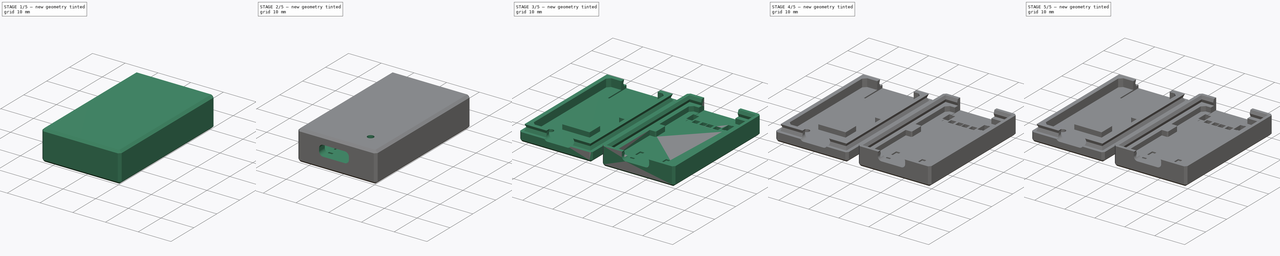
[diagram: build sequence overview — one tinted view per stage of 5, left to right]
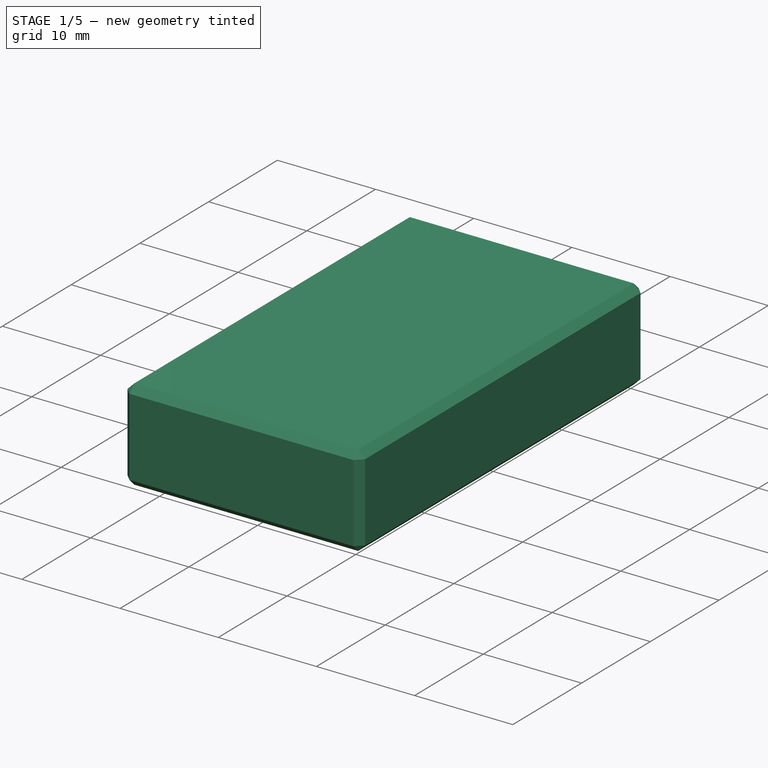
[diagram: stage 1 of 5 — iso view after this stage's code; geometry added in this stage tinted green]
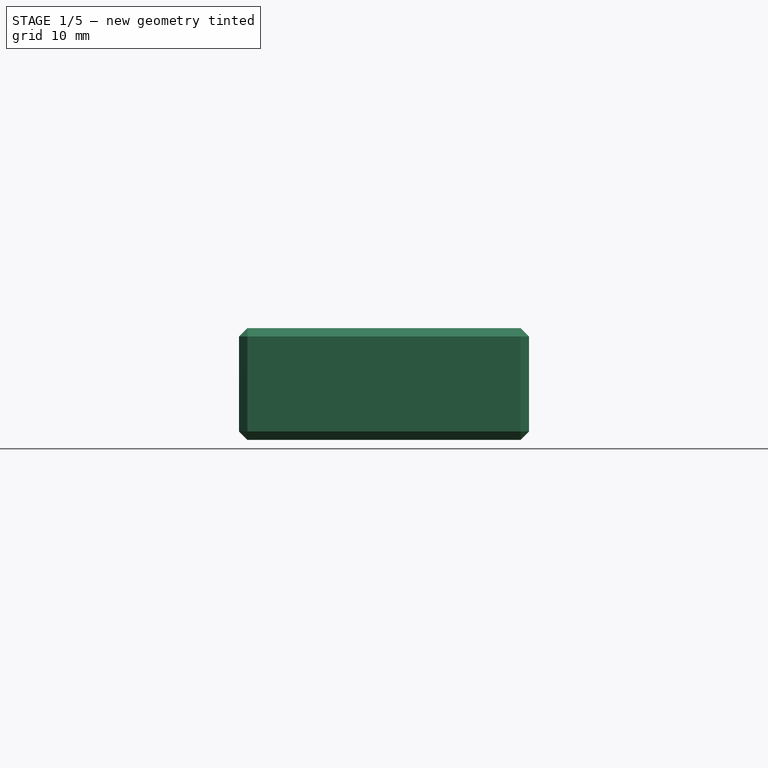
[diagram: stage 1 of 5 — front view after this stage's code; geometry added in this stage tinted green]
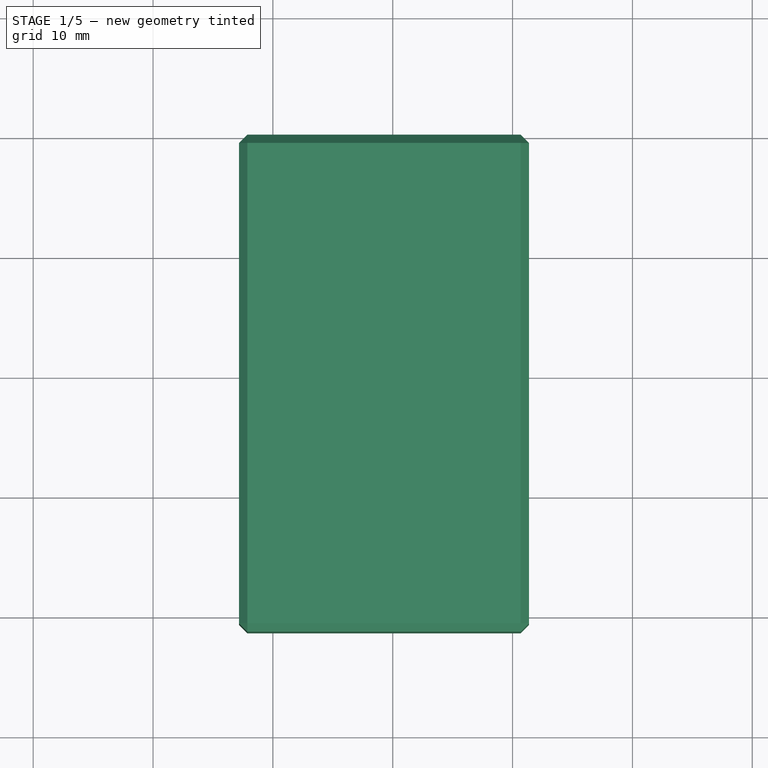
[diagram: stage 1 of 5 — top view after this stage's code; geometry added in this stage tinted green]
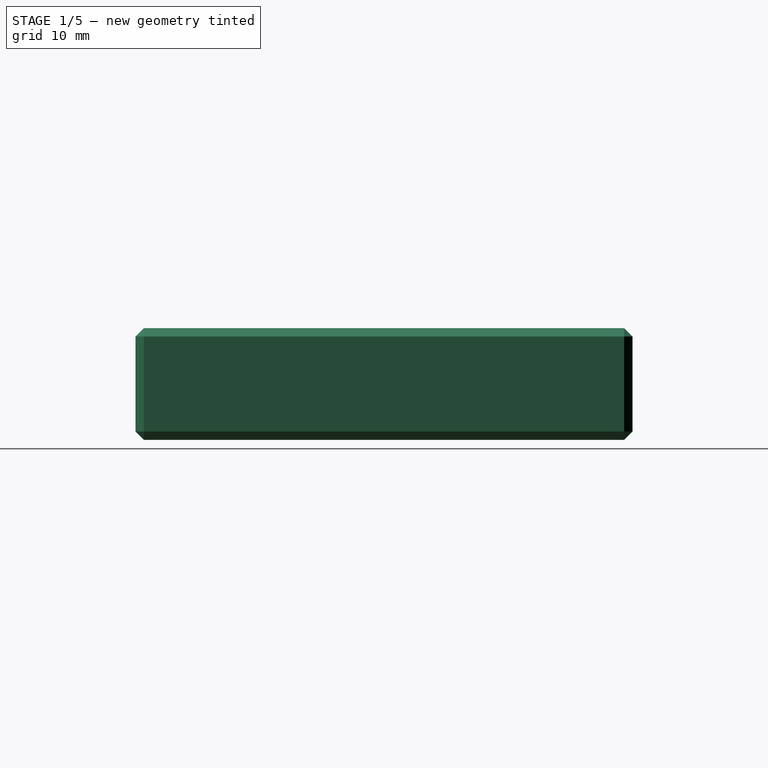
[diagram: stage 1 of 5 — right view after this stage's code; geometry added in this stage tinted green]
FCSTD DOCUMENT  (FreeCAD 0.21R33668 +7 (Git))
Label: case
License: All rights reserved
LicenseURL: http://en.wikipedia.org/wiki/All_rights_reserved
objects: Part::Feature×31, App::Part×31, Sketcher::SketchObject×13, PartDesign::Pocket×10, App::Link×9, Part::FeaturePython×9, Part::Part2DObjectPython×6, Part::Extrusion×3, Part::Cut×3, PartDesign::Pad×2, PartDesign::Body×2, Spreadsheet::Sheet×1, PartDesign::Chamfer×1, PartDesign::LinearPattern×1, Part::Compound×1, PartDesign::AdditivePipe×1, App::DocumentObjectGroup×1
note: 97 computed .brp shape members not serialized (recipe doc carries the construction recipe); baked Part::Feature solids carry a one-line shape summary decoded from their .brp

FEATURE [Spreadsheet::Sheet] Spreadsheet  label="Param"
  cells = A1='Key; B1='Value; C1='Comment; A2='T_XY; B2(T_XY)==0.08 mm; C2='X/Y tolerancy.; A3='T_Z; B3(T_Z)==0.06 mm; C3='Z tolerancy.; A4='T_BOARD; B4(T_BOARD)==1 mm; C4='Board thickness.; A5='T_WALL; B5(T_WALL)==2.5 mm; C5='Wall thickness.; A6='T_CONN_WALL; B6(T_CONN_WALL)==1.6 mm; C6='ST-Link connector wall thickness.; A7='T_LABEL; B7(T_LABEL)==0.4 mm; C7='Label thickness.; A8='S_SIDE; B8(S_SIDE)==0.25 mm; C8='Side spacing.; A9='S_PIN; B9(S_PIN)==0.3 mm; C9='Pin spacing.; A10='W_LATCH; B10(W_LATCH)==0.5 mm; C10='Wall latch width.; A11='H_LATCH; B11(H_LATCH)==2 mm; C11='Wall latch height.; A12='D_LED; B12(D_LED)==1.75 mm; C12='LED hole diameter.; A13='R_CORNER; B13(R_CORNER)==0.7 mm; C13='Corner radius.
FEATURE [Sketcher::SketchObject] Sketch  label="OuterSketch"
  AttachmentOffset = pos=(0,0,-2.56) rot=(0,0,1;0rad)
  FullyConstrained = true
  MapMode = 5
  Placement = pos=(0,0,-2.56) rot=(0,0,1;0rad)
  Support = -> [XY_Plane031]
  expr: .AttachmentOffset.Base.z = -(<<Param>>.T_WALL + <<Param>>.T_Z)
  expr: .Constraints.X1 = -(<<Param>>.T_WALL + <<Param>>.S_SIDE + <<Param>>.T_XY)
  expr: .Constraints.X2 = 730 mil + <<Param>>.T_WALL + <<Param>>.S_SIDE + <<Param>>.T_XY
  expr: .Constraints.Y1 = 60 mil - <<Param>>.T_WALL - <<Param>>.S_SIDE - <<Param>>.T_XY
  expr: .Constraints.Y2 = 1470 mil + <<Param>>.T_WALL + <<Param>>.S_SIDE + <<Param>>.T_XY
  sketch-geometry (4):
    g0: LineSegment StartX=-2.83 StartY=-1.306 StartZ=0 EndX=21.372 EndY=-1.306 EndZ=0
    g1: LineSegment StartX=21.372 StartY=-1.306 StartZ=0 EndX=21.372 EndY=40.168 EndZ=0
    g2: LineSegment StartX=21.372 StartY=40.168 StartZ=0 EndX=-2.83 EndY=40.168 EndZ=0
    g3: LineSegment StartX=-2.83 StartY=40.168 StartZ=0 EndX=-2.83 EndY=-1.306 EndZ=0
  constraints (12):
    c: Coincident(g0,g1)
    c: Coincident(g1,g2)
    c: Coincident(g2,g3)
    c: Coincident(g3,g0)
    c: Horizontal(g0)
    c: Horizontal(g2)
    c: Vertical(g1)
    c: Vertical(g3)
    c: DistanceX(g0) = -2.83  'X1'
    c: DistanceY(g0) = -1.306  'Y1'
    c: DistanceX(g1) = 21.372  'X2'
    c: DistanceY(g1) = 40.168  'Y2'
FEATURE [Part::Feature] Part__Feature  label="SOLID"
  shape: bbox 2.54 x 7.62 x 11.54 mm, 76 faces (baked)
FEATURE [App::Part] PinHeader_1x03_P2_54mm_Vertical  label="PinHeader_1x03_P2.54mm_Vertical"
  Group = -> [Part__Feature]
  Origin = -> Origin
  Placement = pos=(-0.103,16.002,-0.45) rot=(0,-1,0;1.5708rad)
FEATURE [Part::Feature] Part__Feature001  label="SOLID001"
  shape: bbox 1.6 x 0.8 x 0.45 mm, 26 faces (baked)
FEATURE [App::Part] R_0603_1608Metric
  Group = -> [Part__Feature001]
  Origin = -> Origin032
  Placement = pos=(15.24,6.731,1.05) rot=(0,0,1;3.14159rad)
FEATURE [Part::Feature] Part__Feature002  label="SOLID002"
  shape: bbox 2.54 x 22.86 x 11.54 mm, 220 faces (baked)
FEATURE [App::Part] PinHeader_1x09_P2_54mm_Vertical  label="PinHeader_1x09_P2.54mm_Vertical"
  Group = -> [Part__Feature002]
  Origin = -> Origin033
  Placement = pos=(16.383,29.845,1.05) rot=(0,0,1;0rad)
FEATURE [Part::Feature] Part__Feature003  label="SOLID003"
  shape: bbox 1.6 x 0.8 x 1.1 mm, 50 faces (baked)
FEATURE [App::Part] LED_0603_1608Metric
  Group = -> [Part__Feature003]
  Origin = -> Origin034
  Placement = pos=(15.24,5.08,1.05) rot=(0,0,1;3.14159rad)
FEATURE [Part::Feature] Part__Feature004  label="COMPOUND"
  shape: bbox 8.95 x 7.9 x 4.2 mm, 586 faces, 4 solids (baked)
FEATURE [App::Part] HRO_TYPE_C_31_M_12  label="HRO_TYPE-C-31-M-12"
  Group = -> [Part__Feature004]
  Origin = -> Origin035
  Placement = pos=(8.509,0.127,1.05) rot=(0,0,1;0rad)
FEATURE [Part::Feature] Part__Feature005  label="SOLID004"
  shape: bbox 1.6 x 0.8 x 0.45 mm, 26 faces (baked)
FEATURE [App::Part] R_0603_1608Metric001
  Group = -> [Part__Feature005]
  Origin = -> Origin036
  Placement = pos=(2.032,4.572,1.05) rot=(0,0,1;1.5708rad)
FEATURE [Part::Feature] Part__Feature006  label="SOLID005"
  shape: bbox 1.6 x 0.8 x 0.45 mm, 26 faces (baked)
FEATURE [App::Part] R_0603_1608Metric002
  Group = -> [Part__Feature006]
  Origin = -> Origin037
  Placement = pos=(2.286,29.9465,1.05) rot=(0,0,-1;1.5708rad)
FEATURE [Part::Feature] Part__Feature007  label="SOLID006"
  shape: bbox 2.5 x 3 x 1.2 mm, 76 faces (baked)
FEATURE [App::Part] SOT_23  label="SOT-23"
  Group = -> [Part__Feature007]
  Origin = -> Origin038
  Placement = pos=(7.747,18.542,1.05) rot=(0,0,1;0rad)
FEATURE [Part::Feature] Part__Feature008  label="SOLID007"
  shape: bbox 1.6 x 0.8 x 0.8 mm, 28 faces (baked)
FEATURE [App::Part] C_0603_1608Metric
  Group = -> [Part__Feature008]
  Origin = -> Origin039
  Placement = pos=(5.08,18.542,1.05) rot=(0,0,1;1.5708rad)
FEATURE [Part::Feature] Part__Feature009  label="SOLID008"
  shape: bbox 1.6 x 0.8 x 0.8 mm, 28 faces (baked)
FEATURE [App::Part] C_0603_1608Metric001
  Group = -> [Part__Feature009]
  Origin = -> Origin040
  Placement = pos=(8.636,22.098,1.05) rot=(0,0,1;1.5708rad)
FEATURE [Part::Feature] Part__Feature010  label="SOLID009"
  shape: bbox 3.8 x 1.6 x 1.25 mm, 67 faces (baked)
FEATURE [App::Part] D_SOD_123  label="D_SOD-123"
  Group = -> [Part__Feature010]
  Origin = -> Origin041
  Placement = pos=(12.192,18.288,1.05) rot=(0,0,1;0rad)
FEATURE [Part::Feature] Part__Feature011  label="SOLID010"
  shape: bbox 3.8 x 1.6 x 1.25 mm, 67 faces (baked)
FEATURE [App::Part] D_SOD_124  label="D_SOD-124"
  Group = -> [Part__Feature011]
  Origin = -> Origin042
  Placement = pos=(12.192,20.828,1.05) rot=(0,0,1;0rad)
FEATURE [Part::Feature] Part__Feature012  label="SOLID011"
  shape: bbox 1.6 x 0.8 x 0.45 mm, 26 faces (baked)
FEATURE [App::Part] R_0603_1608Metric003
  Group = -> [Part__Feature012]
  Origin = -> Origin043
  Placement = pos=(15.24,3.302,1.05) rot=(0,0,1;0rad)
FEATURE [Part::Feature] Part__Feature013  label="SOLID012"
  shape: bbox 1.6 x 0.8 x 0.45 mm, 26 faces (baked)
FEATURE [App::Part] R_0603_1608Metric004
  Group = -> [Part__Feature013]
  Origin = -> Origin044
  Placement = pos=(2.032,7.874,1.05) rot=(0,0,-1;1.5708rad)
FEATURE [Part::Feature] Part__Feature014  label="COMPOUND001"
  shape: bbox 12.7 x 5.97 x 20.36 mm, 302 faces (baked)
FEATURE [App::Part] _80370001  label="480370001"
  Group = -> [Part__Feature014]
  Origin = -> Origin045
  Placement = pos=(8.453,42.828,2.25) rot=(0,0.707107,0.707107;3.14159rad)
FEATURE [Part::Feature] Part__Feature015  label="SOLID013"
  shape: bbox 1.6 x 0.8 x 0.8 mm, 28 faces (baked)
FEATURE [App::Part] C_0603_1608Metric002
  Group = -> [Part__Feature015]
  Origin = -> Origin046
  Placement = pos=(13.716,10.922,1.05) rot=(0,0,-1;1.5708rad)
FEATURE [Part::Feature] Part__Feature016  label="SOLID014"
  shape: bbox 1.6 x 0.8 x 0.8 mm, 28 faces (baked)
FEATURE [App::Part] C_0603_1608Metric003
  Group = -> [Part__Feature016]
  Origin = -> Origin047
  Placement = pos=(13.716,13.97,1.05) rot=(0,0,-1;1.5708rad)
FEATURE [Part::Feature] Part__Feature017  label="SOLID015"
  shape: bbox 1.6 x 0.8 x 0.8 mm, 28 faces (baked)
FEATURE [App::Part] C_0603_1608Metric004
  Group = -> [Part__Feature017]
  Origin = -> Origin048
  Placement = pos=(11.938,24.13,1.05) rot=(0,0,-1;1.5708rad)
FEATURE [Part::Feature] Part__Feature018  label="SOLID016"
  shape: bbox 1.6 x 0.8 x 0.8 mm, 28 faces (baked)
FEATURE [App::Part] C_0603_1608Metric005
  Group = -> [Part__Feature018]
  Origin = -> Origin049
  Placement = pos=(11.938,27.178,1.05) rot=(0,0,-1;1.5708rad)
FEATURE [Part::Feature] Part__Feature019  label="SOLID017"
  shape: bbox 6.4 x 6.5 x 1.2 mm, 336 faces (baked)
FEATURE [App::Part] TSSOP_20_4_4x6_5mm_P0_65mm  label="TSSOP-20_4.4x6.5mm_P0.65mm"
  Group = -> [Part__Feature019]
  Origin = -> Origin050
  Placement = pos=(6.858,12.954,1.05) rot=(0,0,1;3.14159rad)
FEATURE [Part::Feature] Part__Feature020  label="SOLID018"
  shape: bbox 6.4 x 6.5 x 1.2 mm, 336 faces (baked)
FEATURE [App::Part] TSSOP_20_4_4x6_5mm_P0_65mm001  label="TSSOP-20_4.4x6.5mm_P0.65mm001"
  Group = -> [Part__Feature020]
  Origin = -> Origin051
  Placement = pos=(7.112,27.432,1.05) rot=(0,0,1;3.14159rad)
FEATURE [Part::Feature] Part__Feature021  label="SOLID019"
  shape: bbox 1.6 x 0.8 x 0.45 mm, 26 faces (baked)
FEATURE [App::Part] R_0603_1608Metric005
  Group = -> [Part__Feature021]
  Origin = -> Origin052
  Placement = pos=(11.938,10.922,1.05) rot=(0,0,-1;1.5708rad)
FEATURE [Part::Feature] Part__Feature022  label="SOLID020"
  shape: bbox 1.6 x 0.8 x 0.45 mm, 26 faces (baked)
FEATURE [App::Part] R_0603_1608Metric006
  Group = -> [Part__Feature022]
  Origin = -> Origin053
  Placement = pos=(11.938,13.97,1.05) rot=(0,0,-1;1.5708rad)
FEATURE [Part::Feature] Part__Feature023  label="SOLID021"
  shape: bbox 1.6 x 0.8 x 0.45 mm, 26 faces (baked)
FEATURE [App::Part] R_0603_1608Metric007
  Group = -> [Part__Feature023]
  Origin = -> Origin054
  Placement = pos=(13.716,24.13,1.05) rot=(0,0,-1;1.5708rad)
FEATURE [Part::Feature] Part__Feature024  label="SOLID022"
  shape: bbox 1.6 x 0.8 x 0.45 mm, 26 faces (baked)
FEATURE [App::Part] R_0603_1608Metric008
  Group = -> [Part__Feature024]
  Origin = -> Origin055
  Placement = pos=(13.716,27.178,1.05) rot=(0,0,-1;1.5708rad)
FEATURE [Part::Feature] Part__Feature025  label="SOLID023"
  shape: bbox 1.6 x 0.8 x 0.45 mm, 26 faces (baked)
FEATURE [App::Part] R_0603_1608Metric009
  Group = -> [Part__Feature025]
  Origin = -> Origin056
  Placement = pos=(12.446,16.256,1.05) rot=(0,0,1;0rad)
FEATURE [Part::Feature] Part__Feature026  label="SOLID024"
  shape: bbox 1.6 x 0.8 x 0.45 mm, 26 faces (baked)
FEATURE [App::Part] R_0603_1608Metric010
  Group = -> [Part__Feature026]
  Origin = -> Origin057
  Placement = pos=(12.7,29.464,1.05) rot=(0,0,1;0rad)
FEATURE [Part::Feature] Part__Feature027  label="SOLID025"
  shape: bbox 1.6 x 0.8 x 0.8 mm, 28 faces (baked)
FEATURE [App::Part] C_0603_1608Metric006
  Group = -> [Part__Feature027]
  Origin = -> Origin058
  Placement = pos=(2.032,12.954,1.05) rot=(0,0,1;1.5708rad)
FEATURE [Part::Feature] Part__Feature028  label="SOLID026"
  shape: bbox 1.6 x 0.8 x 0.8 mm, 28 faces (baked)
FEATURE [App::Part] C_0603_1608Metric007
  Group = -> [Part__Feature028]
  Origin = -> Origin059
  Placement = pos=(2.286,26.67,1.05) rot=(0,0,1;1.5708rad)
FEATURE [Part::Feature] Part__Feature029  label="SOLID027"
  shape: bbox 1.6 x 0.8 x 0.8 mm, 28 faces (baked)
FEATURE [App::Part] C_0603_1608Metric008
  Group = -> [Part__Feature029]
  Origin = -> Origin060
  Placement = pos=(6.858,22.098,1.05) rot=(0,0,1;1.5708rad)
FEATURE [Part::Feature] Part__Feature030  label="COMPOUND002"
  shape: bbox 18.54 x 35.81 x 1 mm, 57 faces (baked)
FEATURE [App::Part] Open_CASCADE_STEP_translator_6_9_1  label="vkm.kicad_pcb"
  Group = -> [PinHeader_1x03_P2_54mm_Vertical,R_0603_1608Metric,PinHeader_1x09_P2_54mm_Vertical,LED_0603_1608Metric,HRO_TYPE_C_31_M_12,R_0603_1608Metric001,R_0603_1608Metric002,SOT_23,C_0603_1608Metric,C_0603_1608Metric001,D_SOD_123,D_SOD_124,R_0603_1608Metric003,R_0603_1608Metric004,_80370001,C_0603_1608Metric002,C_0603_1608Metric003,C_0603_1608Metric004,C_0603_1608Metric005,TSSOP_20_4_4x6_5mm_P0_65mm,+11 more]
  Origin = -> Origin061
FEATURE [PartDesign::Pad] Pad  label="OuterPad"
  Direction = (0,0,1)
  Length = 9.33
  Length2 = 10
  Profile = -> Sketch
  ReferenceAxis = -> Sketch [N_Axis]
  Type = 0
  expr: Length = <<Param>>.T_BOARD + 3.21 mm + 2 * (<<Param>>.T_WALL + <<Param>>.T_Z)
FEATURE [Sketcher::SketchObject] Sketch001  label="BoardSketch"
  AttachmentOffset = pos=(0,0,-0.06) rot=(0,0,1;0rad)
  FullyConstrained = true
  MapMode = 5
  Placement = pos=(0,0,-0.06) rot=(0,0,1;0rad)
  Support = -> [XY_Plane031]
  expr: .AttachmentOffset.Base.z = -<<Param>>.T_Z
  expr: Constraints[22] = <<OuterSketch>>.Constraints.Y1 + <<Param>>.T_WALL
  expr: Constraints[23] = <<OuterSketch>>.Constraints.X1 + <<Param>>.T_WALL
  expr: Constraints[24] = <<OuterSketch>>.Constraints.X2 - <<Param>>.T_WALL
  expr: Constraints[25] = <<OuterSketch>>.Constraints.Y2 - <<Param>>.T_WALL
  expr: Constraints[35] = max(0 mm; 0.76 mm - <<Param>>.S_SIDE - <<Param>>.T_XY)
  expr: Constraints[36] = 50 mil + <<Param>>.S_SIDE + <<Param>>.T_XY - min(0 mm; 0.76 mm - <<Param>>.S_SIDE - <<Param>>.T_XY)
  expr: Constraints[37] = 560 mil + 2 * (<<Param>>.S_SIDE + <<Param>>.T_XY)
  expr: Constraints[38] = 210 mil - 2 * (<<Param>>.S_SIDE + <<Param>>.T_XY)
  expr: Constraints[39] = 40 mil
  sketch-geometry (14):
    g0: LineSegment StartX=-0.33 StartY=2.21 StartZ=0 EndX=0.686 EndY=1.194 EndZ=0
    g1: LineSegment StartX=0.686 StartY=1.194 StartZ=0 EndX=17.856 EndY=1.194 EndZ=0
    g2: LineSegment StartX=17.856 StartY=1.194 StartZ=0 EndX=18.872 EndY=2.21 EndZ=0
    g3: LineSegment StartX=18.872 StartY=2.21 StartZ=0 EndX=18.872 EndY=36.652 EndZ=0
    g4: LineSegment StartX=18.872 StartY=36.652 StartZ=0 EndX=17.856 EndY=37.668 EndZ=0
    g5: LineSegment StartX=17.856 StartY=37.668 StartZ=0 EndX=0.686 EndY=37.668 EndZ=0
    g6: LineSegment StartX=0.686 StartY=37.668 StartZ=0 EndX=-0.33 EndY=36.652 EndZ=0
    g7: LineSegment StartX=-0.33 StartY=36.652 StartZ=0 EndX=-0.33 EndY=22.784 EndZ=0
    g8: LineSegment StartX=-0.33 StartY=22.784 StartZ=0 EndX=1.27 EndY=22.784 EndZ=0
    g9: LineSegment StartX=1.7 StartY=22.354 StartZ=0 EndX=1.7 EndY=18.54 EndZ=0
    g10: LineSegment StartX=1.27 StartY=18.11 StartZ=0 EndX=-0.33 EndY=18.11 EndZ=0
    g11: LineSegment StartX=-0.33 StartY=18.11 StartZ=0 EndX=-0.33 EndY=2.21 EndZ=0
    g12: ArcOfCircle CenterX=1.27 CenterY=22.354 CenterZ=0 NormalX=0 NormalY=0 NormalZ=1 AngleXU=0 Radius=0.43 StartAngle=-2.7e-15 EndAngle=1.5708
    g13: ArcOfCircle CenterX=1.27 CenterY=18.54 CenterZ=0 NormalX=0 NormalY=0 NormalZ=1 AngleXU=0 Radius=0.43 StartAngle=4.71239 EndAngle=6.28319
  constraints (40):
    c: Coincident(g0,g1)
    c: Horizontal(g1)
    c: Coincident(g1,g2)
    c: Coincident(g2,g3)
    c: Vertical(g3)
    c: Coincident(g3,g4)
    c: Coincident(g4,g5)
    c: Horizontal(g5)
    c: Coincident(g5,g6)
    c: Coincident(g6,g7)
    c: Vertical(g7)
    c: Coincident(g7,g8)
    c: Vertical(g9)
    c: Horizontal(g10)
    c: Coincident(g10,g11)
    c: Coincident(g11,g0)
    c: Vertical(g11)
    c: Horizontal(g0,g2)
    c: Vertical(g10,g7)
    c: Horizontal(g6,g3)
    c: Vertical(g5,g0)
    c: Vertical(g1,g4)
    c: DistanceY(g0) = 1.194
    c: DistanceX(g0) = -0.33
    c: DistanceX(g3) = 18.872
    c: DistanceY(g4) = 37.668
    c: Equal(g6,g4)
    c: Equal(g4,g2)
    c: Angle(g4,g3) = 2.35619
    c: Horizontal(g8)
    c: Tangent(g8,g12) = 1.5708
    c: Tangent(g9,g12) = 1.5708
    c: Tangent(g9,g13) = 1.5708
    c: Tangent(g10,g13) = 1.5708
    c: Equal(g13,g12)
    c: Radius(g12) = 0.43
    c: DistanceX(g8,g8) = 1.6
    c: DistanceY(g8,g5) = 14.884
    c: DistanceY(g10,g7) = 4.674
    c: DistanceX(g4,g4) = 1.016
FEATURE [Sketcher::SketchObject] Sketch002  label="LedSketch"
  FullyConstrained = true
  MapMode = 5
  Support = -> [XY_Plane031]
  expr: Constraints[0] = <<Param>>.D_LED + 2 * <<Param>>.T_XY
  expr: Constraints[1] = 600 mil
  expr: Constraints[2] = 200 mil
  sketch-geometry (1):
    g0: Circle CenterX=15.24 CenterY=5.08 CenterZ=0 NormalX=0 NormalY=0 NormalZ=1 AngleXU=0 Radius=0.955
  constraints (3):
    c: Diameter(g0) = 1.91
    c: DistanceX(g0) = 15.24
    c: DistanceY(g0) = 5.08
FEATURE [Sketcher::SketchObject] Sketch003  label="UsbCSketch"
  AttachmentOffset = pos=(0,0,-7.427) rot=(0,0,1;0rad)
  FullyConstrained = true
  MapMode = 5
  Placement = pos=(0,7.427,1.6e-15) rot=(1,0,0;1.5708rad)
  Support = -> [XZ_Plane031]
  expr: .AttachmentOffset.Base.z = -(5 mil + 7.3 mm)
  expr: .Constraints.D1 = 3.16 mm + 2 * <<Param>>.T_Z
  expr: .Constraints.R1 = 1.1 mm + <<Param>>.T_XY + <<Param>>.T_Z
  expr: .Constraints.W1 = 8.95 mm + 2 * <<Param>>.T_XY
  expr: .Constraints.X1 = 335 mil
  expr: .Constraints.Z1 = <<Param>>.T_BOARD + 0.05 mm - <<Param>>.T_Z
  sketch-geometry (9):
    g0: LineSegment StartX=5.194 StartY=4.27 StartZ=0 EndX=11.824 EndY=4.27 EndZ=0
    g1: LineSegment StartX=13.064 StartY=3.03 StartZ=0 EndX=13.064 EndY=2.23 EndZ=0
    g2: LineSegment StartX=11.824 StartY=0.99 StartZ=0 EndX=5.194 EndY=0.99 EndZ=0
    g3: LineSegment StartX=3.954 StartY=2.23 StartZ=0 EndX=3.954 EndY=3.03 EndZ=0
    g4: ArcOfCircle CenterX=5.194 CenterY=3.03 CenterZ=0 NormalX=0 NormalY=0 NormalZ=1 AngleXU=0 Radius=1.24 StartAngle=1.5708 EndAngle=3.14159
    g5: ArcOfCircle CenterX=5.194 CenterY=2.23 CenterZ=0 NormalX=0 NormalY=0 NormalZ=1 AngleXU=0 Radius=1.24 StartAngle=3.14159 EndAngle=4.71239
    g6: ArcOfCircle CenterX=11.824 CenterY=2.23 CenterZ=0 NormalX=0 NormalY=0 NormalZ=1 AngleXU=0 Radius=1.24 StartAngle=4.71239 EndAngle=6.28319
    g7: ArcOfCircle CenterX=11.824 CenterY=3.03 CenterZ=0 NormalX=0 NormalY=0 NormalZ=1 AngleXU=0 Radius=1.24 StartAngle=0 EndAngle=1.5708
    g8: GeomPoint X=8.509 Y=0.99 Z=0
  constraints (21):
    c: Horizontal(g0)
    c: Horizontal(g2)
    c: Vertical(g1)
    c: Vertical(g3)
    c: Tangent(g0,g4) = 1.5708
    c: Tangent(g3,g4) = 1.5708
    c: Tangent(g3,g5) = 1.5708
    c: Tangent(g2,g5) = 1.5708
    c: Tangent(g2,g6) = 1.5708
    c: Tangent(g1,g6) = 1.5708
    c: Tangent(g1,g7) = 1.5708
    c: Tangent(g0,g7) = 1.5708
    c: Equal(g7,g4)
    c: Equal(g4,g5)
    c: Equal(g5,g6)
    c: DistanceX(g3,g1) = 9.11  'W1'
    c: DistanceY(g2,g0) = 3.28  'D1'
    c: Symmetric(g2,g2,g8)
    c: Radius(g4) = 1.24  'R1'
    c: DistanceX(g8) = 8.509  'X1'
    c: DistanceY(g8) = 0.99  'Z1'
FEATURE [Sketcher::SketchObject] Sketch004  label="UsbCHoldSketch"
  AttachmentOffset = pos=(0,0,2.69) rot=(0,0,1;0rad)
  FullyConstrained = true
  MapMode = 5
  Placement = pos=(0,0,2.69) rot=(0,0,1;0rad)
  Support = -> [XY_Plane031]
  expr: .AttachmentOffset.Base.z = <<UsbCSketch>>.Constraints.Z1 + <<Param>>.T_Z + <<UsbCSketch>>.Constraints.D1 / 2
  expr: Constraints[10] = <<UsbCSketch>>.Constraints.X1
  expr: Constraints[11] = <<UsbCSketch>>.Placement.Base.y + <<Param>>.T_XY
  expr: Constraints[12] = <<UsbCSketch>>.Constraints.W1
  sketch-geometry (5):
    g0: LineSegment StartX=3.954 StartY=12.507 StartZ=0 EndX=13.064 EndY=12.507 EndZ=0
    g1: LineSegment StartX=13.064 StartY=12.507 StartZ=0 EndX=13.064 EndY=7.507 EndZ=0
    g2: LineSegment StartX=13.064 StartY=7.507 StartZ=0 EndX=3.954 EndY=7.507 EndZ=0
    g3: LineSegment StartX=3.954 StartY=7.507 StartZ=0 EndX=3.954 EndY=12.507 EndZ=0
    g4: GeomPoint X=8.509 Y=7.507 Z=0
  constraints (13):
    c: Coincident(g0,g1)
    c: Coincident(g1,g2)
    c: Coincident(g2,g3)
    c: Coincident(g3,g0)
    c: Horizontal(g0)
    c: Horizontal(g2)
    c: Vertical(g1)
    c: Vertical(g3)
    c: DistanceY(g1,g1) = 5
    c: Symmetric(g2,g1,g4)
    c: DistanceX(g4) = 8.509
    c: DistanceY(g4) = 7.507
    c: DistanceX(g0,g0) = 9.11
FEATURE [Sketcher::SketchObject] Sketch005  label="UsbATopSketch"
  AttachmentOffset = pos=(0,0,-31.33) rot=(0,0,1;0rad)
  FullyConstrained = true
  MapMode = 5
  Placement = pos=(0,31.33,7e-15) rot=(1,0,0;1.5708rad)
  Support = -> [XZ_Plane031]
  expr: .AttachmentOffset.Base.z = -31.33 mm
  expr: .Constraints.W1 = 12 mm + 2 * <<Param>>.T_XY
  expr: .Constraints.X1 = 8.453 mm
  expr: .Constraints.Z1 = <<Param>>.T_BOARD
  expr: .Constraints.Z2 = <<Param>>.T_BOARD + 3.6 mm + <<Param>>.T_Z
  sketch-geometry (5):
    g0: LineSegment StartX=2.373 StartY=4.66 StartZ=0 EndX=14.533 EndY=4.66 EndZ=0
    g1: LineSegment StartX=14.533 StartY=4.66 StartZ=0 EndX=14.533 EndY=1 EndZ=0
    g2: LineSegment StartX=14.533 StartY=1 StartZ=0 EndX=2.373 EndY=1 EndZ=0
    g3: LineSegment StartX=2.373 StartY=1 StartZ=0 EndX=2.373 EndY=4.66 EndZ=0
    g4: GeomPoint X=8.453 Y=1 Z=0
  constraints (13):
    c: Coincident(g0,g1)
    c: Coincident(g1,g2)
    c: Coincident(g2,g3)
    c: Coincident(g3,g0)
    c: Horizontal(g0)
    c: Horizontal(g2)
    c: Vertical(g1)
    c: Vertical(g3)
    c: DistanceY(g0) = 4.66  'Z2'
    c: Symmetric(g2,g1,g4)
    c: DistanceY(g1) = 1  'Z1'
    c: DistanceX(g2,g2) = 12.16  'W1'
    c: DistanceX(g4) = 8.453  'X1'
FEATURE [Sketcher::SketchObject] Sketch006  label="UsbABottomSketch"
  AttachmentOffset = pos=(0,0,-31.33) rot=(0,0,1;0rad)
  FullyConstrained = true
  MapMode = 5
  Placement = pos=(0,31.33,7e-15) rot=(1,0,0;1.5708rad)
  Support = -> [XZ_Plane031]
  expr: .AttachmentOffset.Base.z = -31.33 mm
  expr: .Constraints.W1 = <<UsbATopSketch>>.Constraints.W1
  expr: .Constraints.X1 = <<UsbATopSketch>>.Constraints.X1
  expr: .Constraints.Z2 = <<UsbATopSketch>>.Constraints.Z2
  expr: Constraints[13] = 4.7 mm + 2 * <<Param>>.T_Z
  sketch-geometry (5):
    g0: LineSegment StartX=2.373 StartY=4.66 StartZ=0 EndX=14.533 EndY=4.66 EndZ=0
    g1: LineSegment StartX=14.533 StartY=4.66 StartZ=0 EndX=14.533 EndY=-0.16 EndZ=0
    g2: LineSegment StartX=14.533 StartY=-0.16 StartZ=0 EndX=2.373 EndY=-0.16 EndZ=0
    g3: LineSegment StartX=2.373 StartY=-0.16 StartZ=0 EndX=2.373 EndY=4.66 EndZ=0
    g4: GeomPoint X=8.453 Y=-0.16 Z=0
  constraints (14):
    c: Coincident(g0,g1)
    c: Coincident(g1,g2)
    c: Coincident(g2,g3)
    c: Coincident(g3,g0)
    c: Horizontal(g0)
    c: Horizontal(g2)
    c: Vertical(g1)
    c: Vertical(g3)
    c: DistanceY(g0) = 4.66  'Z2'
    c: Symmetric(g2,g1,g4)
    c: DistanceY(g1) = -0.16  'Z1'
    c: DistanceX(g2,g2) = 12.16  'W1'
    c: DistanceX(g4) = 8.453  'X1'
    c: DistanceY(g1,g1) = 4.82
FEATURE [PartDesign::Chamfer] Chamfer  label="OuterChamfer"
  Angle = 45
  Base = -> Pad [Edge1,Edge2,Edge3,Edge4,Edge5,Edge6,Edge7,Edge8,Edge9,Edge10,Edge11,Edge12]
  BaseFeature = -> Pad
  ChamferType = 0
  FlipDirection = false
  Size = 0.7
  Size2 = 1
  SupportTransform = false
  UseAllEdges = true
  expr: Size = <<Param>>.R_CORNER
FEATURE [PartDesign::Body] Body  label="Case"
  Group = -> [Sketch,Pad,Sketch001,Chamfer,Pocket,Sketch002,Pocket001,Sketch003,Pocket002,Pocket005,Sketch004,Pad001,Sketch005,Pocket003,Sketch006,Pocket004,Sketch007,Sketch008,Pocket006,Sketch009,Pocket007,Sketch010,Pocket008,LinearPattern,Sketch011,Pocket009]
  Origin = -> Origin031
  Tip = -> Pocket009
FEATURE [Part::Part2DObjectPython] Placment  label="LabelPosPeriphery"  # Draft 2D object (typed FeaturePython)
  AttacherType = Attacher::AttachEngine3D
  ExposePlacement = true
  FlipZ = false
  Invert = false
  MarkerShape = 1
  MarkerSize = 5
  NumElements = 1
  Placement = pos=(8.509,3.694,6.37) rot=(0,0,-1;1.5708rad)
  PlacementChoice = 0
  Type = lattice2Placement.LatticePlacement
  isLattice = 1
  expr: .Placement.Base.x = <<UsbCSketch>>.Constraints.X1
  expr: .Placement.Base.y = 5 mm + <<OuterSketch>>.Constraints.Y1
  expr: .Placement.Base.z = <<OuterSketch>>.Placement.Base.z + <<OuterPad>>.Length - <<Param>>.T_LABEL
FEATURE [Part::Part2DObjectPython] Strings  label="LabelPeriphery"  # Draft 2D object (typed FeaturePython)
  AlignPrecisionBoundBox = false
  ArrayLink = -> Placment
  FontFile = ../../res/LiberationMono-Bold.ttf
  FullPathToFont = <path>
  MakeFace = false
  Size = 6
  Strings = P
  Tracking = 0
  XAlign = 3
  YAlign = 3
FEATURE [Part::Extrusion] Extrude  label="LabelPeripheryExtrude"
  Base = -> Strings
  Dir = (0,0,1)
  DirMode = 2
  FaceMakerClass = Part::FaceMakerBullseye
  LengthFwd = 0.4
  LengthRev = 0
  Solid = true
  Symmetric = false
  expr: LengthFwd = <<Param>>.T_LABEL
FEATURE [Part::Part2DObjectPython] Placment001  label="LabelPosControl"  # Draft 2D object (typed FeaturePython)
  AttacherType = Attacher::AttachEngine3D
  ExposePlacement = true
  FlipZ = false
  Invert = false
  MarkerShape = 1
  MarkerSize = 5
  NumElements = 1
  Placement = pos=(8.509,35.168,6.37) rot=(0,0,-1;1.5708rad)
  PlacementChoice = 0
  Type = lattice2Placement.LatticePlacement
  isLattice = 1
  expr: .Placement.Base.x = <<UsbCSketch>>.Constraints.X1
  expr: .Placement.Base.y = <<OuterSketch>>.Constraints.Y2 - 5 mm
  expr: .Placement.Base.z = <<OuterSketch>>.Placement.Base.z + <<OuterPad>>.Length - <<Param>>.T_LABEL
FEATURE [Part::Part2DObjectPython] Strings001  label="LabelControl"  # Draft 2D object (typed FeaturePython)
  AlignPrecisionBoundBox = false
  ArrayLink = -> Placment001
  FontFile = ../../res/LiberationMono-Bold.ttf
  FullPathToFont = <path>
  MakeFace = false
  Size = 6
  Strings = C
  Tracking = 0
  XAlign = 3
  YAlign = 3
FEATURE [Part::Extrusion] Extrude001  label="LabelControlExtrude"
  Base = -> Strings001
  Dir = (0,0,1)
  DirMode = 2
  FaceMakerClass = Part::FaceMakerBullseye
  LengthFwd = 0.4
  LengthRev = 0
  Solid = true
  Symmetric = false
  expr: LengthFwd = <<Param>>.T_LABEL
FEATURE [Part::Part2DObjectPython] Placment002  label="LabelPosVkvm"  # Draft 2D object (typed FeaturePython)
  AttacherType = Attacher::AttachEngine3D
  ExposePlacement = true
  FlipZ = false
  Invert = false
  MarkerShape = 1
  MarkerSize = 5
  NumElements = 1
  Placement = pos=(8.509,19.431,6.37) rot=(0,0,-1;1.5708rad)
  PlacementChoice = 0
  Type = lattice2Placement.LatticePlacement
  isLattice = 1
  expr: .Placement.Base.x = <<UsbCSketch>>.Constraints.X1
  expr: .Placement.Base.y = (<<OuterSketch>>.Constraints.Y1 + <<OuterSketch>>.Constraints.Y2) / 2
  expr: .Placement.Base.z = <<OuterSketch>>.Placement.Base.z + <<OuterPad>>.Length - <<Param>>.T_LABEL
FEATURE [Part::Part2DObjectPython] Strings002  label="LabelVkvm"  # Draft 2D object (typed FeaturePython)
  AlignPrecisionBoundBox = false
  ArrayLink = -> Placment002
  FontFile = ../../res/LiberationMono-Bold.ttf
  FullPathToFont = <path>
  MakeFace = false
  Size = 6
  Strings = VKVM
  Tracking = 0
  XAlign = 3
  YAlign = 3
FEATURE [Part::Extrusion] Extrude002  label="LabelVkvmExtrude"
  Base = -> Strings002
  Dir = (0,0,1)
  DirMode = 2
  FaceMakerClass = Part::FaceMakerBullseye
  LengthFwd = 0.4
  LengthRev = 0
  Solid = true
  Symmetric = false
  expr: LengthFwd = <<Param>>.T_LABEL
FEATURE [Part::Compound] Compound  label="Labels"
  Links = -> [Extrude,Extrude001,Extrude002]
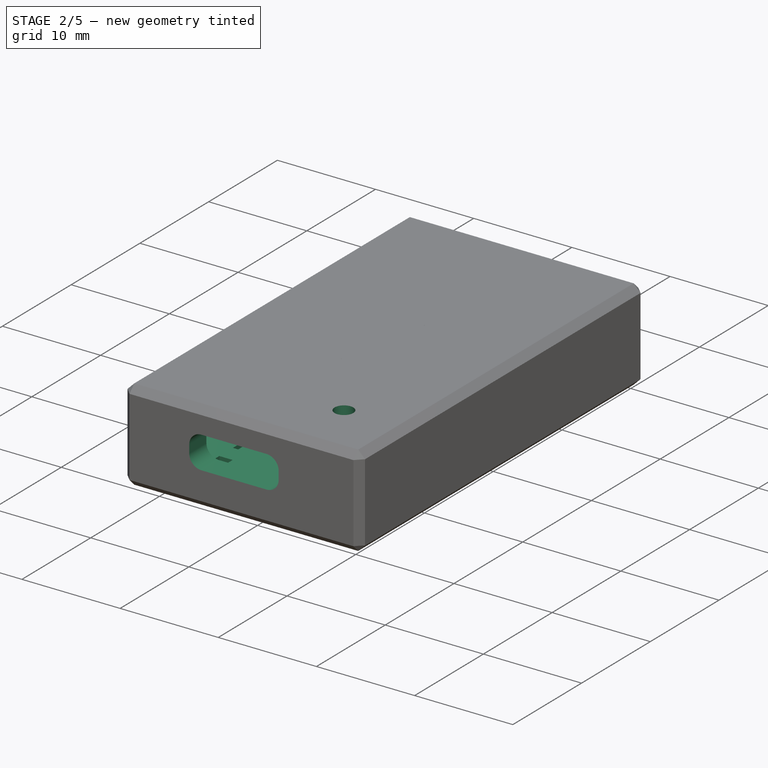
[diagram: stage 2 of 5 — iso view after this stage's code; geometry added in this stage tinted green]
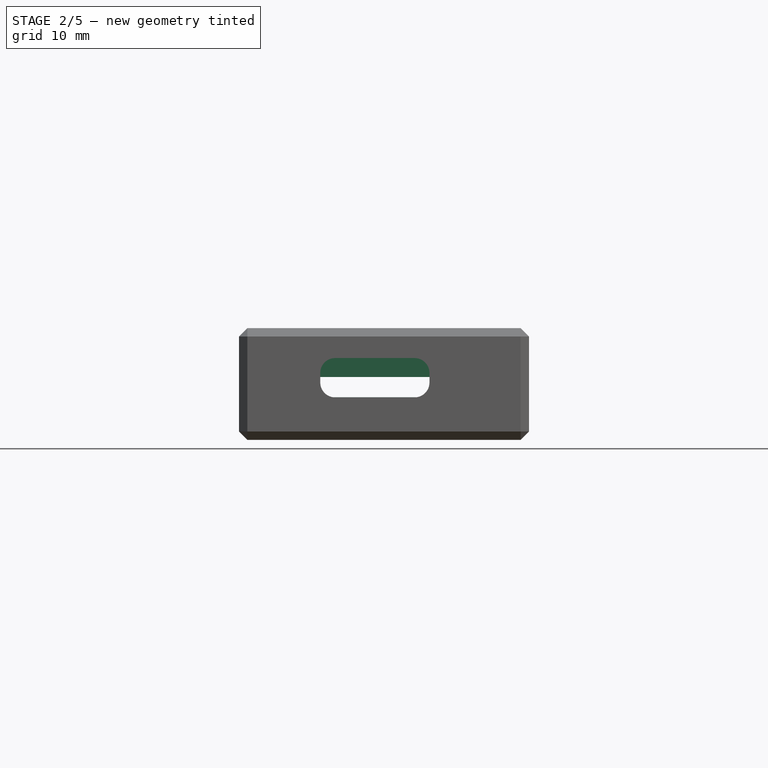
[diagram: stage 2 of 5 — front view after this stage's code; geometry added in this stage tinted green]
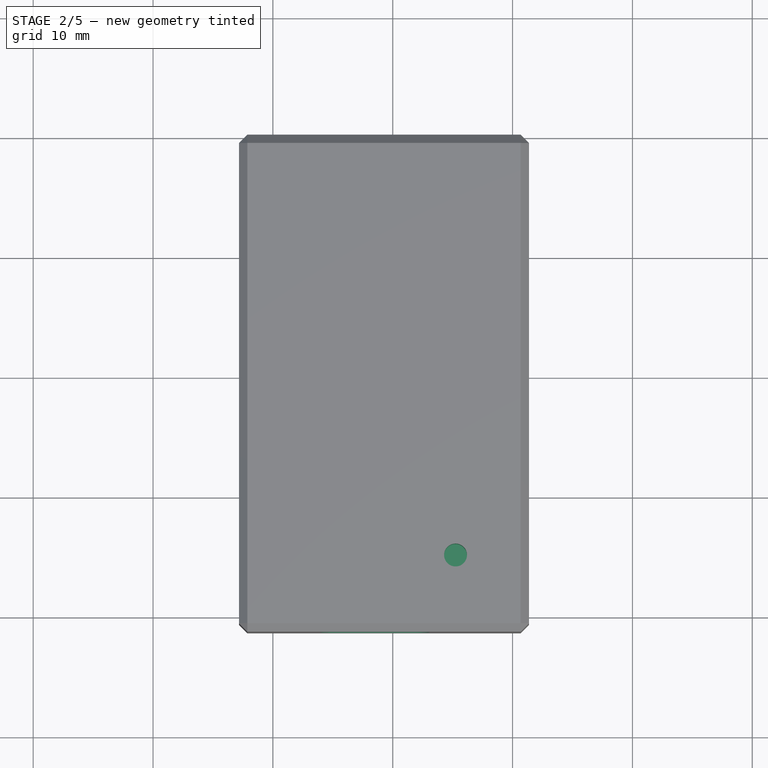
[diagram: stage 2 of 5 — top view after this stage's code; geometry added in this stage tinted green]
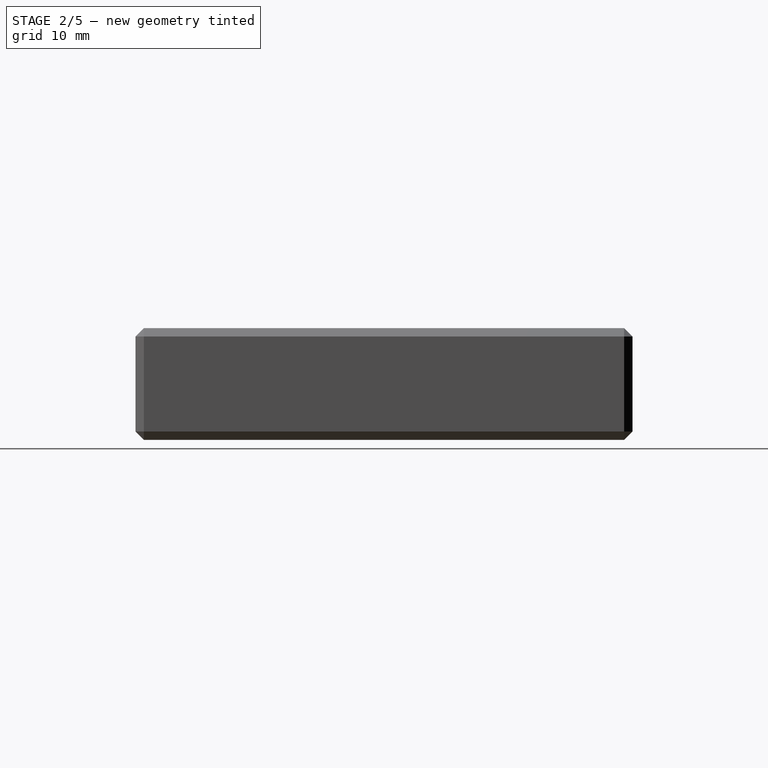
[diagram: stage 2 of 5 — right view after this stage's code; geometry added in this stage tinted green]
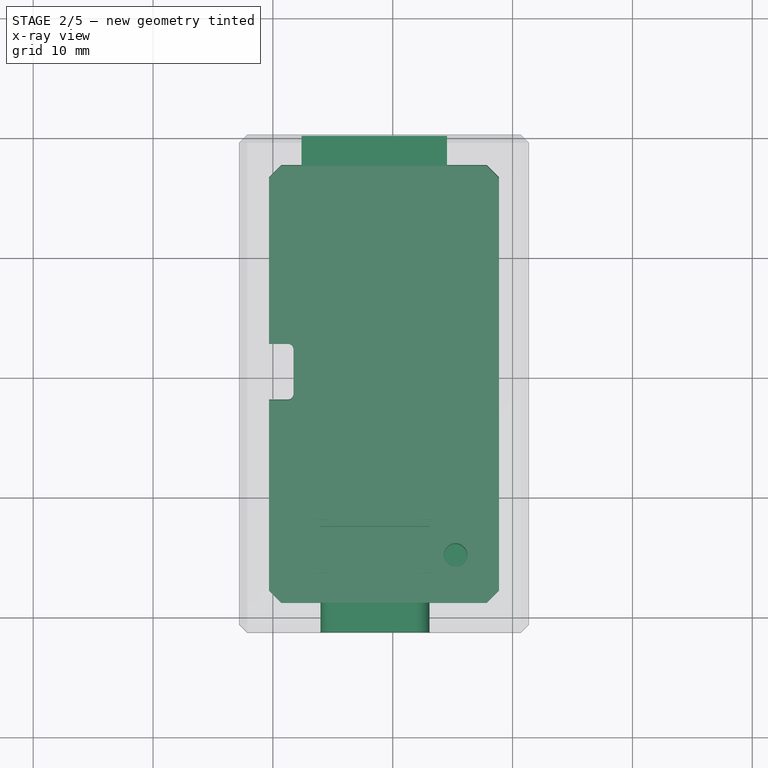
[diagram: stage 2 of 5 — x-ray composite at the top view; earlier geometry ghosted, this stage's added geometry solid]
FEATURE [PartDesign::Pocket] Pocket  label="BoardPocket"
  BaseFeature = -> Chamfer
  Direction = (0,0,-1)
  Length = 4.33
  Length2 = 5
  Profile = -> Sketch001
  ReferenceAxis = -> Sketch001 [N_Axis]
  Reversed = true
  Type = 0
  expr: Length = <<Param>>.T_BOARD + 3.21 mm + 2 * <<Param>>.T_Z
FEATURE [PartDesign::Pocket] Pocket001  label="LedPocket"
  BaseFeature = -> Pocket
  Direction = (0,0,-1)
  Length = 5
  Length2 = 5
  Profile = -> Sketch002
  ReferenceAxis = -> Sketch002 [N_Axis]
  Reversed = true
  Type = 1
FEATURE [PartDesign::Pocket] Pocket002  label="UsbCPocket"
  BaseFeature = -> Pocket001
  Direction = (0,1,2e-16)
  Length = 5
  Length2 = 5
  Profile = -> Sketch003
  ReferenceAxis = -> Sketch003 [N_Axis]
  Reversed = true
  Type = 1
FEATURE [Sketcher::SketchObject] Sketch007  label="UsbCPinsSketch"
  FullyConstrained = true
  MapMode = 5
  Support = -> [XY_Plane031]
  expr: Constraints[89] = <<UsbCSketch>>.Constraints.X1
  expr: Constraints[90] = 5 mil + 6.25 mm
  expr: Constraints[91] = 5.78 mm
  expr: Constraints[92] = 0.65 mm + 2 * (<<Param>>.S_PIN + <<Param>>.T_XY)
  expr: Constraints[94] = 8.64 mm
  expr: Constraints[95] = 4.18 mm
  expr: Constraints[96] = 0.6 mm + 2 * (<<Param>>.S_PIN + <<Param>>.T_XY)
  expr: Constraints[97] = 1.7 mm + 2 * (<<Param>>.S_PIN + <<Param>>.T_XY)
  expr: Constraints[98] = 1.2 mm + 2 * (<<Param>>.S_PIN + <<Param>>.T_XY)
  sketch-geometry (38):
    g0: LineSegment StartX=3.509 StartY=8.137 StartZ=0 EndX=4.869 EndY=8.137 EndZ=0
    g1: LineSegment StartX=4.869 StartY=8.137 StartZ=0 EndX=4.869 EndY=5.677 EndZ=0
    g2: LineSegment StartX=4.869 StartY=5.677 StartZ=0 EndX=3.509 EndY=5.677 EndZ=0
    g3: LineSegment StartX=3.509 StartY=5.677 StartZ=0 EndX=3.509 EndY=8.137 EndZ=0
    g4: LineSegment StartX=3.509 StartY=3.707 StartZ=0 EndX=4.869 EndY=3.707 EndZ=0
    g5: LineSegment StartX=4.869 StartY=3.707 StartZ=0 EndX=4.869 EndY=1.747 EndZ=0
    g6: LineSegment StartX=4.869 StartY=1.747 StartZ=0 EndX=3.509 EndY=1.747 EndZ=0
    g7: LineSegment StartX=3.509 StartY=1.747 StartZ=0 EndX=3.509 EndY=3.707 EndZ=0
    g8: LineSegment StartX=12.149 StartY=3.707 StartZ=0 EndX=13.509 EndY=3.707 EndZ=0
    g9: LineSegment StartX=13.509 StartY=3.707 StartZ=0 EndX=13.509 EndY=1.747 EndZ=0
    g10: LineSegment StartX=13.509 StartY=1.747 StartZ=0 EndX=12.149 EndY=1.747 EndZ=0
    g11: LineSegment StartX=12.149 StartY=1.747 StartZ=0 EndX=12.149 EndY=3.707 EndZ=0
    g12: LineSegment StartX=12.149 StartY=8.137 StartZ=0 EndX=13.509 EndY=8.137 EndZ=0
    g13: LineSegment StartX=13.509 StartY=8.137 StartZ=0 EndX=13.509 EndY=5.677 EndZ=0
    g14: LineSegment StartX=13.509 StartY=5.677 StartZ=0 EndX=12.149 EndY=5.677 EndZ=0
    g15: LineSegment StartX=12.149 StartY=5.677 StartZ=0 EndX=12.149 EndY=8.137 EndZ=0
    g16: LineSegment StartX=10.694 StartY=7.082 StartZ=0 EndX=12.104 EndY=7.082 EndZ=0
    g17: LineSegment StartX=12.104 StartY=7.082 StartZ=0 EndX=12.104 EndY=5.672 EndZ=0
    g18: LineSegment StartX=12.104 StartY=5.672 StartZ=0 EndX=10.694 EndY=5.672 EndZ=0
    g19: LineSegment StartX=10.694 StartY=5.672 StartZ=0 EndX=10.694 EndY=7.082 EndZ=0
    g20: LineSegment StartX=4.914 StartY=7.082 StartZ=0 EndX=6.324 EndY=7.082 EndZ=0
    g21: LineSegment StartX=6.324 StartY=7.082 StartZ=0 EndX=6.324 EndY=5.672 EndZ=0
    g22: LineSegment StartX=6.324 StartY=5.672 StartZ=0 EndX=4.914 EndY=5.672 EndZ=0
    g23: LineSegment StartX=4.914 StartY=5.672 StartZ=0 EndX=4.914 EndY=7.082 EndZ=0
    g24: LineSegment StartX=4.189 StartY=2.727 StartZ=0 EndX=12.829 EndY=2.727 EndZ=0
    g25: LineSegment StartX=12.829 StartY=2.727 StartZ=0 EndX=12.829 EndY=6.907 EndZ=0
    g26: LineSegment StartX=12.829 StartY=6.907 StartZ=0 EndX=4.189 EndY=6.907 EndZ=0
    g27: LineSegment StartX=4.189 StartY=6.907 StartZ=0 EndX=4.189 EndY=2.727 EndZ=0
    g28: LineSegment StartX=5.619 StartY=6.377 StartZ=0 EndX=11.399 EndY=6.377 EndZ=0
    g29: LineSegment StartX=8.509 StartY=6.907 StartZ=0 EndX=8.509 EndY=6.377 EndZ=0
    g30: LineSegment StartX=4.869 StartY=8.137 StartZ=0 EndX=12.149 EndY=8.137 EndZ=0
    g31: LineSegment StartX=13.509 StartY=5.677 StartZ=0 EndX=13.509 EndY=3.707 EndZ=0
    g32: LineSegment StartX=12.149 StartY=1.747 StartZ=0 EndX=4.869 EndY=1.747 EndZ=0
    g33: LineSegment StartX=3.509 StartY=3.707 StartZ=0 EndX=3.509 EndY=5.677 EndZ=0
    g34: LineSegment StartX=4.869 StartY=5.677 StartZ=0 EndX=12.149 EndY=5.677 EndZ=0
    g35: LineSegment StartX=12.149 StartY=5.677 StartZ=0 EndX=12.149 EndY=3.707 EndZ=0
    g36: LineSegment StartX=12.149 StartY=3.707 StartZ=0 EndX=4.869 EndY=3.707 EndZ=0
    g37: LineSegment StartX=4.869 StartY=5.677 StartZ=0 EndX=4.869 EndY=3.707 EndZ=0
  constraints (100):
    c: Coincident(g0,g1)
    c: Coincident(g1,g2)
    c: Coincident(g2,g3)
    c: Coincident(g3,g0)
    c: Horizontal(g0)
    c: Horizontal(g2)
    c: Vertical(g1)
    c: Vertical(g3)
    c: Coincident(g4,g5)
    c: Coincident(g5,g6)
    c: Coincident(g6,g7)
    c: Coincident(g7,g4)
    c: Horizontal(g4)
    c: Horizontal(g6)
    c: Vertical(g5)
    c: Vertical(g7)
    c: Coincident(g8,g9)
    c: Coincident(g9,g10)
    c: Coincident(g10,g11)
    c: Coincident(g11,g8)
    c: Horizontal(g8)
    c: Horizontal(g10)
    c: Vertical(g9)
    c: Vertical(g11)
    c: Coincident(g12,g13)
    c: Coincident(g13,g14)
    c: Coincident(g14,g15)
    c: Coincident(g15,g12)
    c: Horizontal(g12)
    c: Horizontal(g14)
    c: Vertical(g13)
    c: Vertical(g15)
    c: Coincident(g16,g17)
    c: Coincident(g17,g18)
    c: Coincident(g18,g19)
    c: Coincident(g19,g16)
    c: Horizontal(g16)
    c: Horizontal(g18)
    c: Vertical(g17)
    c: Vertical(g19)
    c: Coincident(g20,g21)
    c: Coincident(g21,g22)
    c: Coincident(g22,g23)
    c: Coincident(g23,g20)
    c: Horizontal(g20)
    c: Horizontal(g22)
    c: Vertical(g21)
    c: Vertical(g23)
    c: Coincident(g24,g25)
    c: Coincident(g25,g26)
    c: Coincident(g26,g27)
    c: Coincident(g27,g24)
    c: Horizontal(g24)
    c: Horizontal(g26)
    c: Vertical(g25)
    c: Vertical(g27)
    c: Horizontal(g28)
    c: Symmetric(g16,g17,g28)
    c: Symmetric(g20,g21,g28)
    c: Symmetric(g0,g1,g26)
    c: Symmetric(g4,g5,g24)
    c: Symmetric(g8,g9,g24)
    c: Symmetric(g12,g13,g25)
    c: Vertical(g29)
    c: Symmetric(g25,g26,g29)
    c: Symmetric(g28,g28,g29)
    c: Equal(g20,g21)
    c: Equal(g16,g17)
    c: Coincident(g30,g0)
    c: Coincident(g30,g12)
    c: Horizontal(g30)
    c: Coincident(g31,g13)
    c: Coincident(g31,g8)
    c: Vertical(g31)
    c: Coincident(g32,g10)
    c: Coincident(g32,g5)
    c: Horizontal(g32)
    c: Coincident(g33,g4)
    c: Coincident(g33,g2)
    c: Vertical(g33)
    c: Coincident(g34,g1)
    c: Coincident(g34,g14)
    c: Coincident(g35,g14)
    c: Coincident(g35,g8)
    c: Coincident(g36,g8)
    c: Coincident(g36,g4)
    c: Coincident(g37,g1)
    c: Coincident(g37,g4)
    c: Equal(g8,g4)
    c: DistanceX(g29) = 8.509
    c: DistanceY(g29) = 6.377
    c: DistanceX(g28,g28) = 5.78
    c: DistanceX(g16,g16) = 1.41
    c: Equal(g20,g16)
    c: DistanceX(g26,g26) = 8.64
    c: DistanceY(g25,g25) = 4.18
    c: DistanceX(g12,g12) = 1.36
    c: DistanceY(g13,g13) = 2.46
    c: DistanceY(g9,g9) = 1.96
    c: DistanceY(g24,g28) = 3.65
FEATURE [PartDesign::Pocket] Pocket005  label="UsbCPinsPocket"
  BaseFeature = -> Pocket002
  Direction = (0,0,-1)
  Length = 0.5
  Length2 = 5
  Profile = -> Sketch007
  ReferenceAxis = -> Sketch007 [N_Axis]
  Type = 0
FEATURE [PartDesign::Pad] Pad001  label="UsbCHoldPad"
  BaseFeature = -> Pocket005
  Direction = (0,0,1)
  Length = 10
  Length2 = 10
  Profile = -> Sketch004
  ReferenceAxis = -> Sketch004 [N_Axis]
  Type = 1
FEATURE [PartDesign::Pocket] Pocket003  label="UsbATopPocket"
  BaseFeature = -> Pad001
  Direction = (0,1,2e-16)
  Length = 5
  Length2 = 5
  Profile = -> Sketch005
  ReferenceAxis = -> Sketch005 [N_Axis]
  Type = 1
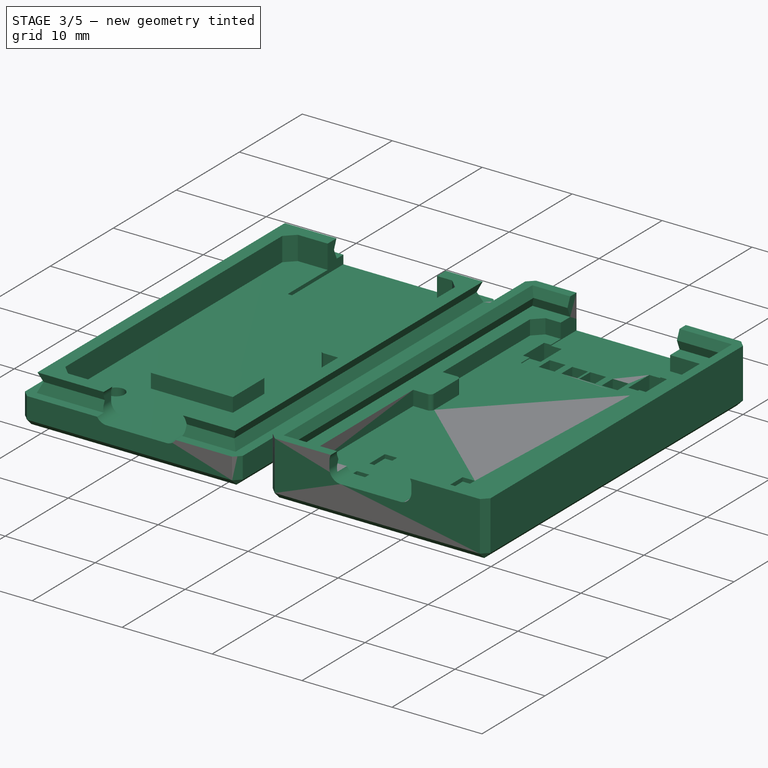
[diagram: stage 3 of 5 — iso view after this stage's code; geometry added in this stage tinted green]
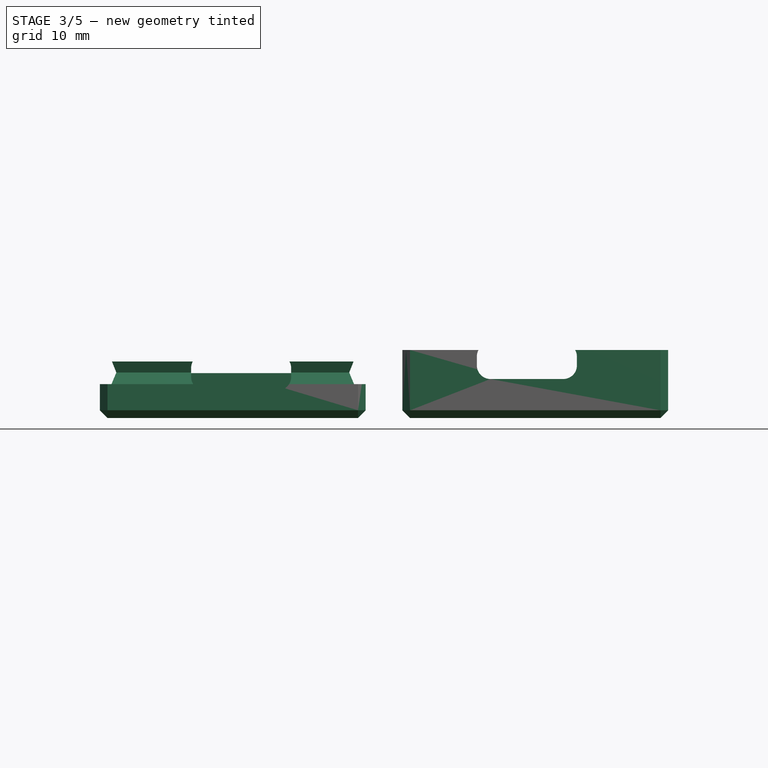
[diagram: stage 3 of 5 — front view after this stage's code; geometry added in this stage tinted green]
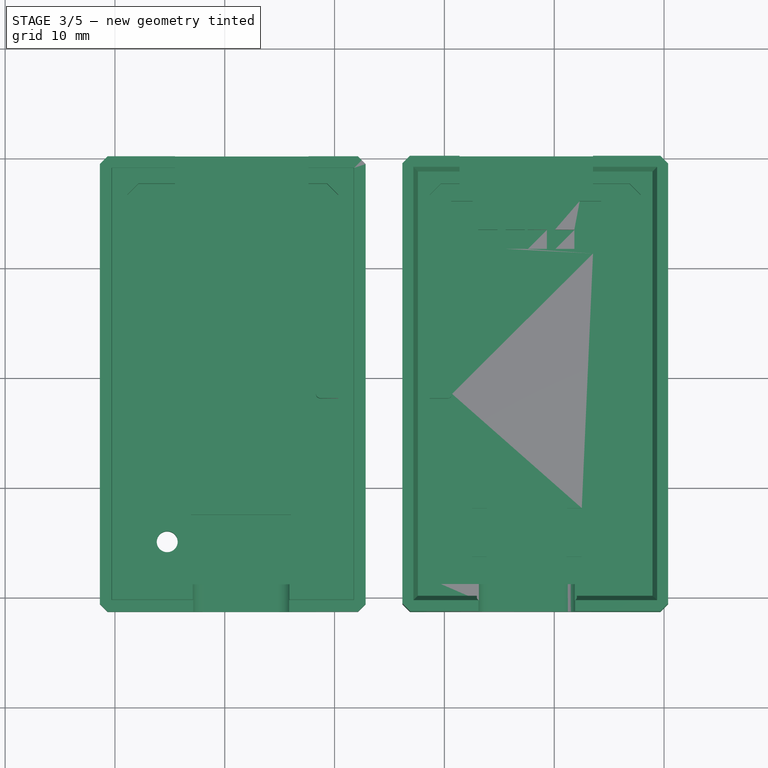
[diagram: stage 3 of 5 — top view after this stage's code; geometry added in this stage tinted green]
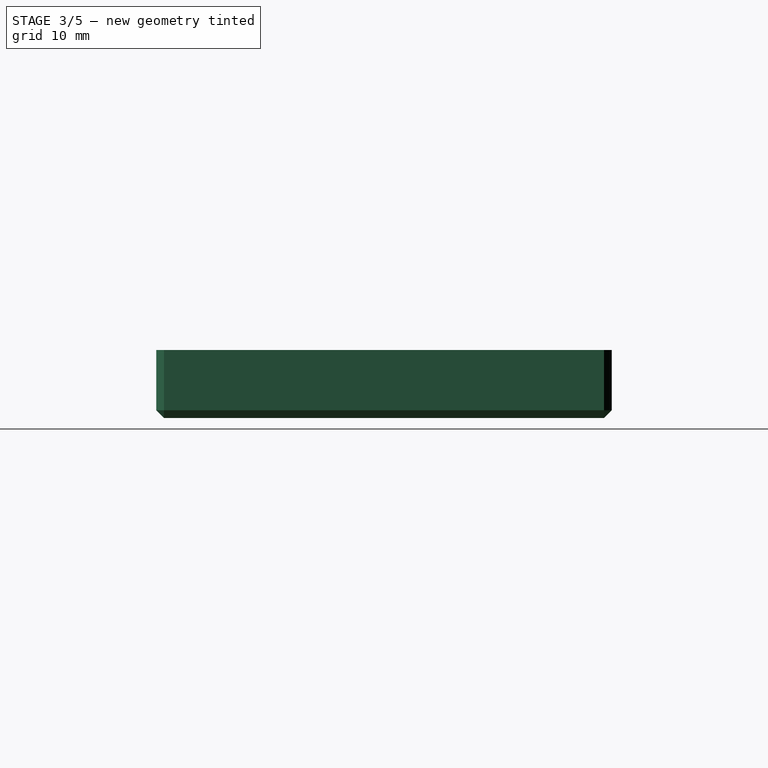
[diagram: stage 3 of 5 — right view after this stage's code; geometry added in this stage tinted green]
FEATURE [PartDesign::Pocket] Pocket004  label="UsbABottomPocket"
  BaseFeature = -> Pocket003
  Direction = (0,1,2e-16)
  Length = 5
  Length2 = 5
  Profile = -> Sketch006
  ReferenceAxis = -> Sketch006 [N_Axis]
  Type = 1
FEATURE [Sketcher::SketchObject] Sketch008  label="UsbAPinsSketch"
  FullyConstrained = true
  MapMode = 5
  Support = -> [XY_Plane031]
  expr: Constraints[117] = 1 mm + 2 * (<<Param>>.S_PIN + <<Param>>.T_XY)
  expr: Constraints[119] = 1.2 mm + 2 * (<<Param>>.S_PIN + <<Param>>.T_XY)
  expr: Constraints[120] = 2.6 mm + 2 * (<<Param>>.S_PIN + <<Param>>.T_XY)
  expr: Constraints[125] = <<UsbATopSketch>>.Constraints.X1
  expr: Constraints[126] = <<UsbATopSketch>>.Placement.Base.y + <<Param>>.T_XY + 1.217 mm
  sketch-geometry (51):
    g0: LineSegment StartX=1.623 StartY=36.107 StartZ=0 EndX=3.583 EndY=36.107 EndZ=0
    g1: LineSegment StartX=3.583 StartY=36.107 StartZ=0 EndX=3.583 EndY=32.747 EndZ=0
    g2: LineSegment StartX=3.583 StartY=32.747 StartZ=0 EndX=1.623 EndY=32.747 EndZ=0
    g3: LineSegment StartX=1.623 StartY=32.747 StartZ=0 EndX=1.623 EndY=36.107 EndZ=0
    g4: LineSegment StartX=13.323 StartY=36.107 StartZ=0 EndX=15.283 EndY=36.107 EndZ=0
    g5: LineSegment StartX=15.283 StartY=36.107 StartZ=0 EndX=15.283 EndY=32.747 EndZ=0
    g6: LineSegment StartX=15.283 StartY=32.747 StartZ=0 EndX=13.323 EndY=32.747 EndZ=0
    g7: LineSegment StartX=13.323 StartY=32.747 StartZ=0 EndX=13.323 EndY=36.107 EndZ=0
    g8: LineSegment StartX=5.328 StartY=35.307 StartZ=0 EndX=7.088 EndY=35.307 EndZ=0
    g9: LineSegment StartX=7.088 StartY=35.307 StartZ=0 EndX=7.088 EndY=33.547 EndZ=0
    g10: LineSegment StartX=7.088 StartY=33.547 StartZ=0 EndX=5.328 EndY=33.547 EndZ=0
    g11: LineSegment StartX=5.328 StartY=33.547 StartZ=0 EndX=5.328 EndY=35.307 EndZ=0
    g12: LineSegment StartX=9.818 StartY=35.307 StartZ=0 EndX=11.578 EndY=35.307 EndZ=0
    g13: LineSegment StartX=11.578 StartY=35.307 StartZ=0 EndX=11.578 EndY=33.547 EndZ=0
    g14: LineSegment StartX=11.578 StartY=33.547 StartZ=0 EndX=9.818 EndY=33.547 EndZ=0
    g15: LineSegment StartX=9.818 StartY=33.547 StartZ=0 EndX=9.818 EndY=35.307 EndZ=0
    g16: LineSegment StartX=4.073 StartY=33.507 StartZ=0 EndX=5.833 EndY=33.507 EndZ=0
    g17: LineSegment StartX=5.833 StartY=33.507 StartZ=0 EndX=5.833 EndY=31.747 EndZ=0
    g18: LineSegment StartX=5.833 StartY=31.747 StartZ=0 EndX=4.073 EndY=31.747 EndZ=0
    g19: LineSegment StartX=4.073 StartY=31.747 StartZ=0 EndX=4.073 EndY=33.507 EndZ=0
    g20: LineSegment StartX=6.573 StartY=33.507 StartZ=0 EndX=8.333 EndY=33.507 EndZ=0
    g21: LineSegment StartX=8.333 StartY=33.507 StartZ=0 EndX=8.333 EndY=31.747 EndZ=0
    g22: LineSegment StartX=8.333 StartY=31.747 StartZ=0 EndX=6.573 EndY=31.747 EndZ=0
    g23: LineSegment StartX=6.573 StartY=31.747 StartZ=0 EndX=6.573 EndY=33.507 EndZ=0
    g24: LineSegment StartX=8.573 StartY=33.507 StartZ=0 EndX=10.333 EndY=33.507 EndZ=0
    g25: LineSegment StartX=10.333 StartY=33.507 StartZ=0 EndX=10.333 EndY=31.747 EndZ=0
    g26: LineSegment StartX=10.333 StartY=31.747 StartZ=0 EndX=8.573 EndY=31.747 EndZ=0
    g27: LineSegment StartX=8.573 StartY=31.747 StartZ=0 EndX=8.573 EndY=33.507 EndZ=0
    g28: LineSegment StartX=11.073 StartY=33.507 StartZ=0 EndX=12.833 EndY=33.507 EndZ=0
    g29: LineSegment StartX=12.833 StartY=33.507 StartZ=0 EndX=12.833 EndY=31.747 EndZ=0
    g30: LineSegment StartX=12.833 StartY=31.747 StartZ=0 EndX=11.073 EndY=31.747 EndZ=0
    g31: LineSegment StartX=11.073 StartY=31.747 StartZ=0 EndX=11.073 EndY=33.507 EndZ=0
    g32: LineSegment StartX=2.603 StartY=34.427 StartZ=0 EndX=14.303 EndY=34.427 EndZ=0
    g33: LineSegment StartX=14.303 StartY=34.427 StartZ=0 EndX=14.303 EndY=32.627 EndZ=0
    g34: LineSegment StartX=14.303 StartY=32.627 StartZ=0 EndX=2.603 EndY=32.627 EndZ=0
    g35: LineSegment StartX=2.603 StartY=32.627 StartZ=0 EndX=2.603 EndY=34.427 EndZ=0
    g36: GeomPoint X=4.953 Y=32.627 Z=0
    g37: GeomPoint X=7.453 Y=32.627 Z=0
    g38: GeomPoint X=9.453 Y=32.627 Z=0
    g39: GeomPoint X=11.953 Y=32.627 Z=0
    g40: LineSegment StartX=3.583 StartY=36.107 StartZ=0 EndX=13.323 EndY=36.107 EndZ=0
    g41: LineSegment StartX=13.323 StartY=32.747 StartZ=0 EndX=3.583 EndY=32.747 EndZ=0
    g42: LineSegment StartX=7.088 StartY=35.307 StartZ=0 EndX=9.818 EndY=35.307 EndZ=0
    g43: LineSegment StartX=7.088 StartY=33.547 StartZ=0 EndX=9.818 EndY=33.547 EndZ=0
    g44: LineSegment StartX=5.833 StartY=33.507 StartZ=0 EndX=6.573 EndY=33.507 EndZ=0
    g45: LineSegment StartX=8.333 StartY=33.507 StartZ=0 EndX=8.573 EndY=33.507 EndZ=0
    g46: LineSegment StartX=10.333 StartY=33.507 StartZ=0 EndX=11.073 EndY=33.507 EndZ=0
    g47: GeomPoint X=6.208 Y=34.427 Z=0
    g48: GeomPoint X=10.698 Y=34.427 Z=0
    g49: GeomPoint X=8.453 Y=32.627 Z=0
    g50: GeomPoint X=8.453 Y=34.427 Z=0
  constraints (127):
    c: Coincident(g0,g1)
    c: Coincident(g1,g2)
    c: Coincident(g2,g3)
    c: Coincident(g3,g0)
    c: Horizontal(g0)
    c: Horizontal(g2)
    c: Vertical(g1)
    c: Vertical(g3)
    c: Coincident(g4,g5)
    c: Coincident(g5,g6)
    c: Coincident(g6,g7)
    c: Coincident(g7,g4)
    c: Horizontal(g4)
    c: Horizontal(g6)
    c: Vertical(g5)
    c: Vertical(g7)
    c: Coincident(g8,g9)
    c: Coincident(g9,g10)
    c: Coincident(g10,g11)
    c: Coincident(g11,g8)
    c: Horizontal(g8)
    c: Horizontal(g10)
    c: Vertical(g9)
    c: Vertical(g11)
    c: Coincident(g12,g13)
    c: Coincident(g13,g14)
    c: Coincident(g14,g15)
    c: Coincident(g15,g12)
    c: Horizontal(g12)
    c: Horizontal(g14)
    c: Vertical(g13)
    c: Vertical(g15)
    c: Coincident(g16,g17)
    c: Coincident(g17,g18)
    c: Coincident(g18,g19)
    c: Coincident(g19,g16)
    c: Horizontal(g16)
    c: Horizontal(g18)
    c: Vertical(g17)
    c: Vertical(g19)
    c: Coincident(g20,g21)
    c: Coincident(g21,g22)
    c: Coincident(g22,g23)
    c: Coincident(g23,g20)
    c: Horizontal(g20)
    c: Horizontal(g22)
    c: Vertical(g21)
    c: Vertical(g23)
    c: Coincident(g24,g25)
    c: Coincident(g25,g26)
    c: Coincident(g26,g27)
    c: Coincident(g27,g24)
    c: Horizontal(g24)
    c: Horizontal(g26)
    c: Vertical(g25)
    c: Vertical(g27)
    c: Coincident(g28,g29)
    c: Coincident(g29,g30)
    c: Coincident(g30,g31)
    c: Coincident(g31,g28)
    c: Horizontal(g28)
    c: Horizontal(g30)
    c: Vertical(g29)
    c: Vertical(g31)
    c: Coincident(g32,g33)
    c: Coincident(g33,g34)
    c: Coincident(g34,g35)
    c: Coincident(g35,g32)
    c: Horizontal(g32)
    c: Horizontal(g34)
    c: Vertical(g33)
    c: Vertical(g35)
    c: PointOnObject(g36,g34)
    c: PointOnObject(g37,g34)
    c: PointOnObject(g39,g34)
    c: Symmetric(g0,g1,g32)
    c: Symmetric(g4,g5,g32)
    c: Symmetric(g16,g17,g36)
    c: Symmetric(g20,g21,g37)
    c: Symmetric(g24,g25,g38)
    c: Symmetric(g28,g29,g39)
    c: Equal(g28,g29)
    c: Equal(g24,g25)
    c: Equal(g20,g21)
    c: Equal(g16,g17)
    c: Equal(g8,g9)
    c: Equal(g12,g13)
    c: Coincident(g40,g0)
    c: Coincident(g40,g4)
    c: Horizontal(g40)
    c: Coincident(g41,g6)
    c: Coincident(g41,g1)
    c: Equal(g0,g4)
    c: Coincident(g42,g8)
    c: Coincident(g42,g12)
    c: Horizontal(g42)
    c: Coincident(g43,g9)
    c: Coincident(g43,g14)
    c: Horizontal(g43)
    c: Coincident(g44,g16)
    c: Coincident(g44,g20)
    c: Horizontal(g44)
    c: Coincident(g45,g20)
    c: Coincident(g45,g24)
    c: Horizontal(g45)
    c: Coincident(g46,g24)
    c: Coincident(g46,g28)
    c: Horizontal(g46)
    c: Equal(g44,g46)
    c: DistanceX(g36,g39) = 7
    c: DistanceX(g37,g38) = 2
    c: DistanceX(g32,g32) = 11.7
    c: DistanceY(g36,g32) = 1.8
    c: PointOnObject(g47,g32)
    c: Symmetric(g12,g13,g48)
    c: Symmetric(g8,g9,g47)
    c: DistanceX(g47,g48) = 4.49
    c: DistanceX(g8,g8) = 1.76
    c: Equal(g8,g16)
    c: DistanceX(g0,g0) = 1.96
    c: DistanceY(g3,g3) = 3.36
    c: Symmetric(g34,g33,g49)
    c: Symmetric(g37,g38,g49)
    c: Symmetric(g48,g47,g50)
    c: Vertical(g49,g50)
    c: DistanceX(g49) = 8.453
    c: DistanceY(g49) = 32.627
FEATURE [PartDesign::Pocket] Pocket006  label="UsbAPinsPocket"
  BaseFeature = -> Pocket004
  Direction = (0,0,-1)
  Length = 2.06
  Length2 = 5
  Profile = -> Sketch008
  ReferenceAxis = -> Sketch008 [N_Axis]
  Type = 0
  expr: Length = 2 mm + <<Param>>.T_Z
FEATURE [Sketcher::SketchObject] Sketch012  label="GapProfileSketch"
  AttachmentOffset = pos=(0,0,-2.306) rot=(0,0,1;0rad)
  FullyConstrained = true
  MapMode = 5
  Placement = pos=(0,2.306,5e-16) rot=(1,0,0;1.5708rad)
  Support = -> [XZ_Plane062]
  expr: .AttachmentOffset.Base.z = <<OuterSketch>>.Constraints.Y1 - 1 mm
  expr: Constraints[29] = <<Param>>.T_Z
  expr: Constraints[30] = <<Param>>.T_XY
  expr: Constraints[31] = <<Param>>.H_LATCH
  expr: Constraints[32] = -(<<Param>>.S_SIDE + <<Param>>.T_XY)
  expr: Constraints[33] = <<OuterSketch>>.Constraints.X1
  expr: Constraints[36] = <<UsbCSketch>>.Constraints.Z1 + <<UsbCSketch>>.Constraints.D1 / 2
  expr: Constraints[38] = <<Param>>.W_LATCH
  sketch-geometry (13):
    g0: LineSegment StartX=-2.83 StartY=3.63 StartZ=0 EndX=-1.83 EndY=3.63 EndZ=0
    g1: LineSegment StartX=-1.83 StartY=3.63 StartZ=0 EndX=-1.41 EndY=2.63 EndZ=0
    g2: LineSegment StartX=-1.41 StartY=2.63 StartZ=0 EndX=-1.83 EndY=1.57 EndZ=0
    g3: LineSegment StartX=-1.83 StartY=1.57 StartZ=0 EndX=1.77 EndY=1.57 EndZ=0
    g4: LineSegment StartX=1.77 StartY=1.57 StartZ=0 EndX=1.77 EndY=1.63 EndZ=0
    g5: LineSegment StartX=1.77 StartY=1.63 StartZ=0 EndX=-1.72623 EndY=1.63 EndZ=0
    g6: LineSegment StartX=-1.72623 StartY=1.63 StartZ=0 EndX=-1.33 EndY=2.63 EndZ=0
    g7: LineSegment StartX=-1.33 StartY=2.63 StartZ=0 EndX=-1.7752 EndY=3.69 EndZ=0
    g8: LineSegment StartX=-1.7752 StartY=3.69 StartZ=0 EndX=-2.83 EndY=3.69 EndZ=0
    g9: LineSegment StartX=-2.83 StartY=3.69 StartZ=0 EndX=-2.83 EndY=3.63 EndZ=0
    g10: LineSegment StartX=-1.33 StartY=2.63 StartZ=0 EndX=-0.33 EndY=2.63 EndZ=0
    g11: LineSegment StartX=-0.33 StartY=2.63 StartZ=0 EndX=-0.33 EndY=1.63 EndZ=0
    g12: LineSegment StartX=-1.83 StartY=3.63 StartZ=0 EndX=-1.83 EndY=2.63 EndZ=0
  constraints (39):
    c: Horizontal(g0)
    c: Coincident(g0,g1)
    c: Coincident(g1,g2)
    c: Coincident(g2,g3)
    c: Horizontal(g3)
    c: Coincident(g3,g4)
    c: Vertical(g4)
    c: Coincident(g4,g5)
    c: Horizontal(g5)
    c: Coincident(g5,g6)
    c: Coincident(g6,g7)
    c: Coincident(g7,g8)
    c: Horizontal(g8)
    c: Coincident(g8,g9)
    c: Coincident(g9,g0)
    c: Vertical(g9)
    c: Vertical(g0,g2)
    c: Equal(g4,g9)
    c: Coincident(g10,g6)
    c: Horizontal(g10)
    c: Coincident(g11,g10)
    c: PointOnObject(g11,g5)
    c: Vertical(g11)
    c: Coincident(g12,g0)
    c: Vertical(g12)
    c: Equal(g12,g11)
    c: Horizontal(g1,g6)
    c: Parallel(g2,g6)
    c: Parallel(g1,g7)
    c: DistanceY(g4,g4) = 0.06
    c: DistanceX(g1,g6) = 0.08
    c: DistanceY(g5,g0) = 2
    c: DistanceX(g10) = -0.33
    c: DistanceX(g8) = -2.83
    c: DistanceX(g11,g4) = 2.1
    c: Horizontal(g12,g1)
    c: DistanceY(g12) = 2.63
    c: Equal(g0,g10)
    c: DistanceX(g0,g6) = 0.5
FEATURE [PartDesign::AdditivePipe] AdditivePipe
  AuxilleryCurvelinear = true
  AuxillerySpineTangent = false
  Binormal = (0,0,0)
  Mode = 0
  Placement = pos=(0,0,0) rot=(1,0,0;1.5708rad)
  Profile = -> Sketch012
  Spine = -> Sketch
  SpineTangent = false
  Transformation = 0
  Transition = 1
FEATURE [App::Link] Link006  label="CaseBaseClone"
  LinkedObject = -> Pocket006
FEATURE [App::Link] Link007  label="LabelsBaseClone"
  LinkedObject = -> Compound
FEATURE [App::Link] Link008  label="GapBaseClone"
  LinkedObject = -> Body001
FEATURE [Part::Cut] Cut002  label="BaseCut"
  Base = -> Link006
  Tool = -> Link007
FEATURE [Part::FeaturePython] Slice002  # WARN: FeaturePython — macro-defined, semantics opaque (R4)
  Base = -> Cut002
  Mode = 1
  Tolerance = 0
  Tools = -> [Link008]
FEATURE [Part::FeaturePython] Slice002_child0  label="PO_BaseBottom"  # WARN: FeaturePython — macro-defined, semantics opaque (R4)
  Base = -> Slice002
  FilterType = 1
  Invert = false
  OverrideMaxVal = 0
  Placement = pos=(9,0,2.56) rot=(0,0,1;0rad)
  WindowFrom = 80
  WindowTo = 100
  items = 0
  expr: .Placement.Base.z = -<<OuterSketch>>.Placement.Base.z
FEATURE [Part::FeaturePython] Slice002_child3  label="PO_BaseTop"  # WARN: FeaturePython — macro-defined, semantics opaque (R4)
  Base = -> Slice002
  FilterType = 1
  Invert = false
  OverrideMaxVal = 0
  Placement = pos=(0,0,6.77) rot=(0,1,0;3.14159rad)
  WindowFrom = 80
  WindowTo = 100
  items = 3
  expr: .Placement.Base.z = <<OuterSketch>>.Placement.Base.z + <<OuterPad>>.Length
FEATURE [App::DocumentObjectGroup] GrExplode_Slice  label="PrintOrientation"
  Group = -> [Slice_child0,Slice_child3,Slice001_child0,Slice001_child3,Slice002_child0,Slice002_child3]
note: 3 file-system paths scrubbed to <path> (originals preserved in the JSON sidecar)
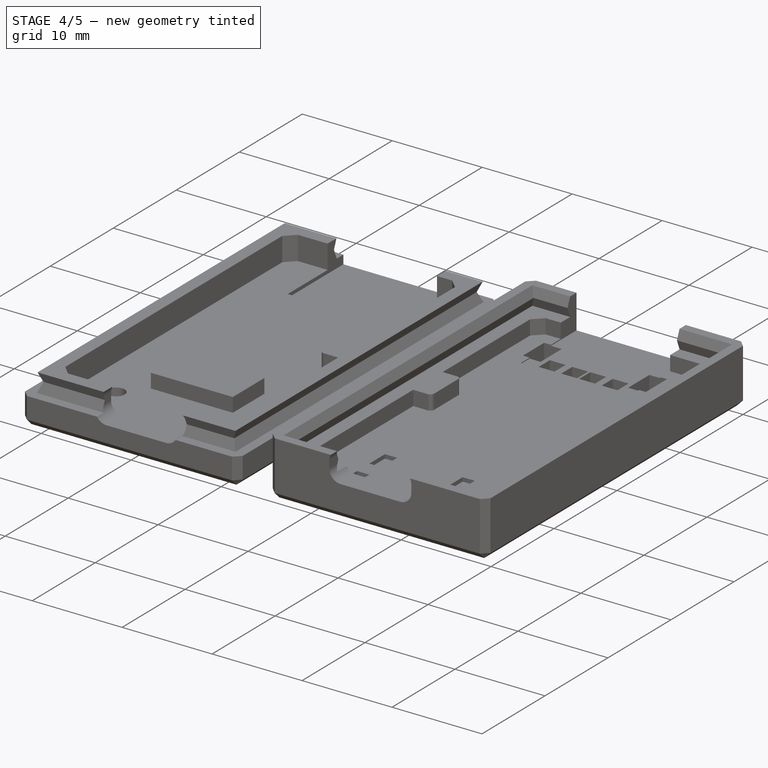
[diagram: stage 4 of 5 — iso view after this stage's code; geometry added in this stage tinted green]
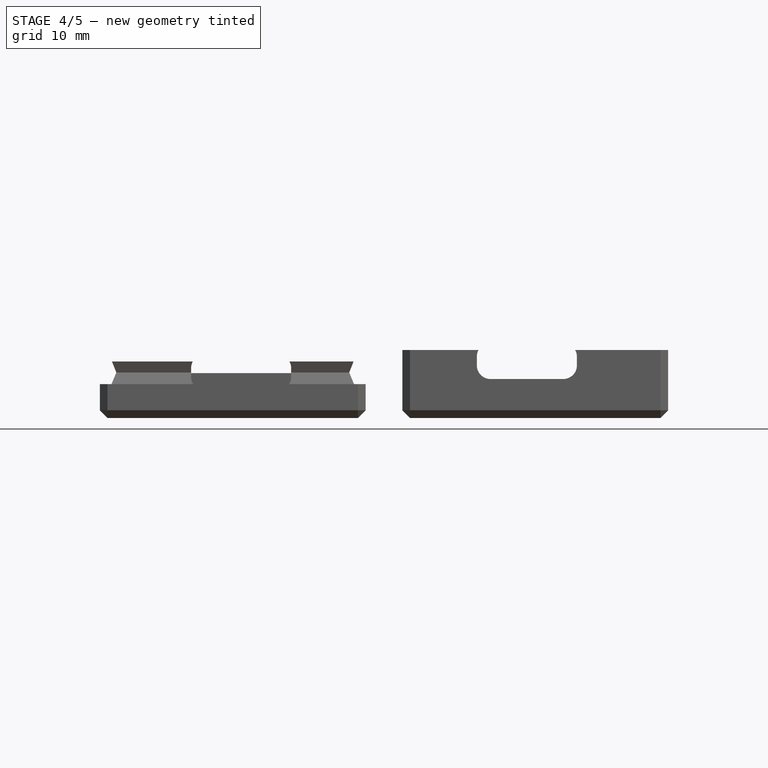
[diagram: stage 4 of 5 — front view after this stage's code; geometry added in this stage tinted green]
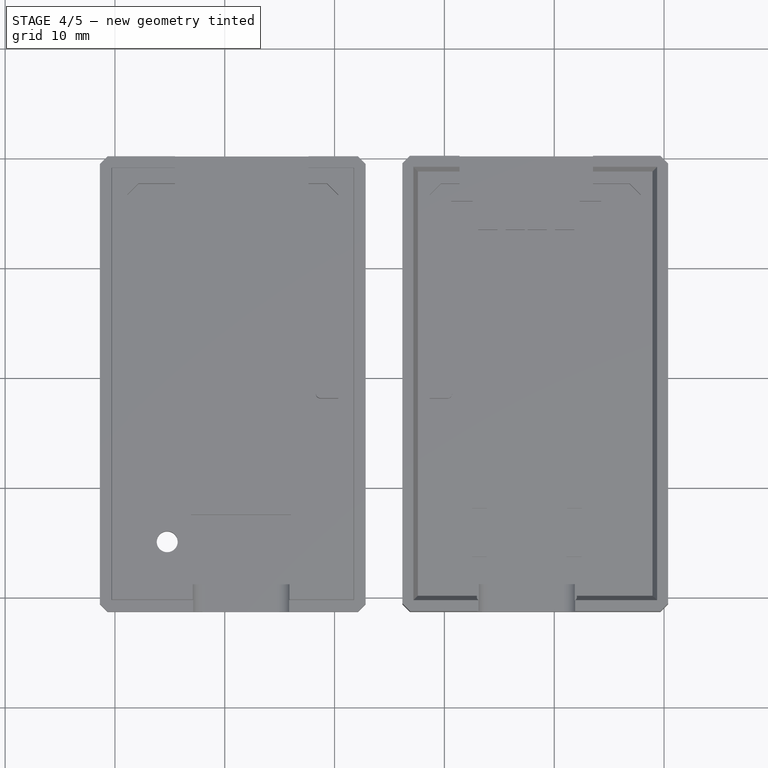
[diagram: stage 4 of 5 — top view after this stage's code; geometry added in this stage tinted green]
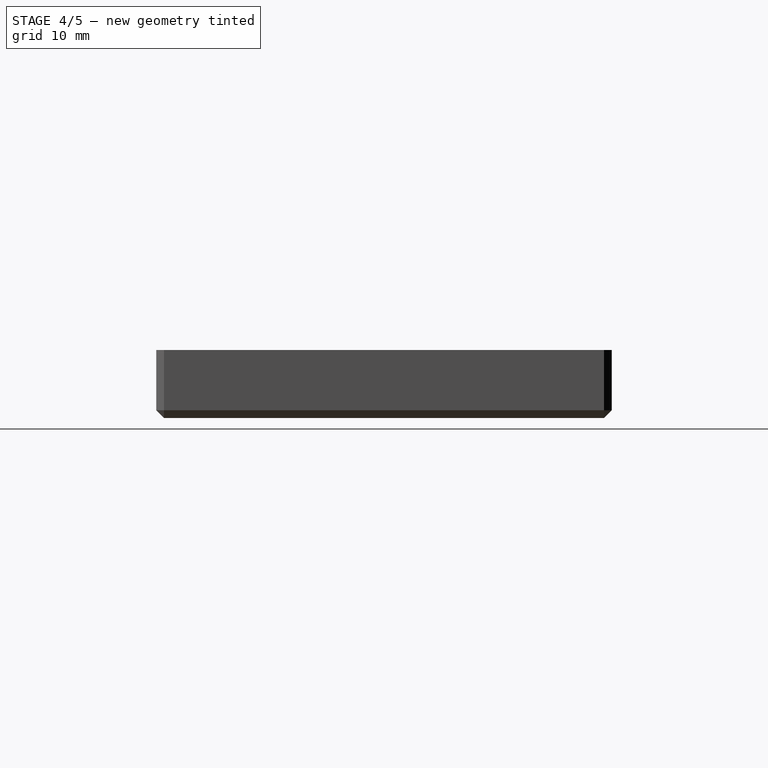
[diagram: stage 4 of 5 — right view after this stage's code; geometry added in this stage tinted green]
FEATURE [Sketcher::SketchObject] Sketch009  label="DebugPinsTopSketch"
  AttachmentOffset = pos=(0,0,1) rot=(0,0,1;0rad)
  FullyConstrained = true
  MapMode = 5
  Placement = pos=(0,0,1) rot=(0,0,1;0rad)
  Support = -> [XY_Plane031]
  expr: .AttachmentOffset.Base.z = <<Param>>.T_BOARD
  expr: .Constraints.H1 = 50 mil + <<Param>>.T_CONN_WALL + <<Param>>.T_XY
  expr: .Constraints.X1 = 645 mil
  expr: .Constraints.Y1 = 375 mil
  expr: Constraints[14] = .Constraints.H1 * 9
  sketch-geometry (6):
    g0: LineSegment StartX=13.433 StartY=33.125 StartZ=0 EndX=19.333 EndY=33.125 EndZ=0
    g1: LineSegment StartX=19.333 StartY=33.125 StartZ=0 EndX=19.333 EndY=6.575 EndZ=0
    g2: LineSegment StartX=13.433 StartY=6.575 StartZ=0 EndX=13.433 EndY=33.125 EndZ=0
    g3: LineSegment StartX=16.383 StartY=6.575 StartZ=0 EndX=16.383 EndY=9.525 EndZ=0
    g4: LineSegment StartX=19.333 StartY=6.575 StartZ=0 EndX=16.383 EndY=6.575 EndZ=0
    g5: LineSegment StartX=16.383 StartY=6.575 StartZ=0 EndX=13.433 EndY=6.575 EndZ=0
  constraints (17):
    c: Coincident(g0,g1)
    c: Coincident(g1,g4)
    c: Coincident(g5,g2)
    c: Coincident(g2,g0)
    c: Horizontal(g0)
    c: Vertical(g1)
    c: Vertical(g2)
    c: Vertical(g3)
    c: Symmetric(g1,g5,g3)
    c: DistanceY(g3,g3) = 2.95  'H1'
    c: Coincident(g4,g5)
    c: Horizontal(g4)
    c: Coincident(g3,g4)
    c: Equal(g3,g4)
    c: DistanceY(g1,g1) = 26.55
    c: DistanceX(g3) = 16.383  'X1'
    c: DistanceY(g3) = 9.525  'Y1'
FEATURE [PartDesign::Pocket] Pocket007  label="DebugPinsTopPocket"
  BaseFeature = -> Pocket006
  Direction = (0,0,-1)
  Length = 5
  Length2 = 5
  Profile = -> Sketch009
  ReferenceAxis = -> Sketch009 [N_Axis]
  Reversed = true
  Type = 1
FEATURE [Sketcher::SketchObject] Sketch010  label="DebugPinsBottomSketch"
  AttachmentOffset = pos=(0,0,-2.06) rot=(0,0,1;0rad)
  FullyConstrained = true
  MapMode = 5
  Placement = pos=(0,0,-2.06) rot=(0,0,1;0rad)
  Support = -> [XY_Plane031]
  expr: .AttachmentOffset.Base.z = -(2 mm + <<Param>>.T_Z)
  expr: Constraints[0] = <<DebugPinsTopSketch>>.Constraints.X1
  expr: Constraints[1] = <<DebugPinsTopSketch>>.Constraints.Y1
  expr: Constraints[2] = 0.85 mm + <<Param>>.S_PIN + <<Param>>.T_XY
  sketch-geometry (1):
    g0: Circle CenterX=16.383 CenterY=9.525 CenterZ=0 NormalX=0 NormalY=0 NormalZ=1 AngleXU=0 Radius=1.23
  constraints (3):
    c: DistanceX(g0) = 16.383
    c: DistanceY(g0) = 9.525
    c: Radius(g0) = 1.23
FEATURE [PartDesign::Pocket] Pocket008  label="DebugPinsBottomPocket"
  BaseFeature = -> Pocket007
  Direction = (0,0,-1)
  Length = 5
  Length2 = 5
  Profile = -> Sketch010
  ReferenceAxis = -> Sketch010 [N_Axis]
  Reversed = true
  Type = 1
FEATURE [PartDesign::LinearPattern] LinearPattern  label="DebugPinsBottomPattern"
  BaseFeature = -> Pocket008
  Direction = -> Y_Axis031
  Length = 20.32
  Occurrences = 9
  Originals = -> [Pocket008]
  expr: Length = 800 mil
FEATURE [App::Link] Link003  label="CaseDebugPinsClone"
  LinkedObject = -> LinearPattern
FEATURE [App::Link] Link004  label="LabelsDebugPinsClone"
  LinkedObject = -> Compound
FEATURE [App::Link] Link005  label="GapDebugPinsClone"
  LinkedObject = -> Body001
FEATURE [Part::Cut] Cut001  label="DebugPinsCut"
  Base = -> Link003
  Tool = -> Link004
FEATURE [Part::FeaturePython] Slice001  # WARN: FeaturePython — macro-defined, semantics opaque (R4)
  Base = -> Cut001
  Mode = 1
  Tolerance = 0
  Tools = -> [Link005]
FEATURE [Part::FeaturePython] Slice001_child3  label="PO_DebugPinsTop"  # WARN: FeaturePython — macro-defined, semantics opaque (R4)
  Base = -> Slice001
  FilterType = 1
  Invert = false
  OverrideMaxVal = 0
  Placement = pos=(0,0,6.77) rot=(0,1,0;3.14159rad)
  WindowFrom = 80
  WindowTo = 100
  items = 3
  expr: .Placement.Base.z = <<OuterSketch>>.Placement.Base.z + <<OuterPad>>.Length
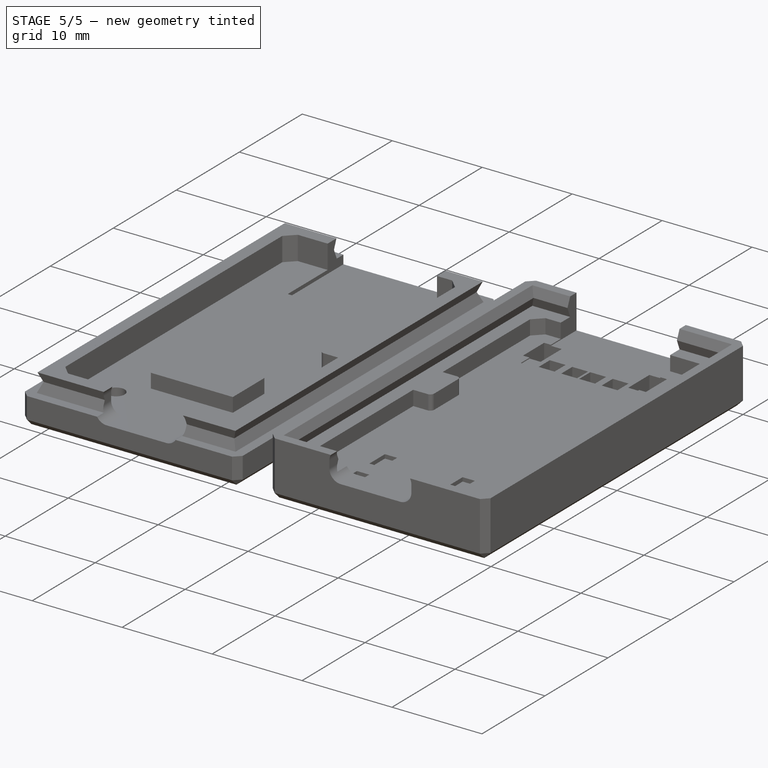
[diagram: stage 5 of 5 — iso view after this stage's code; geometry added in this stage tinted green]
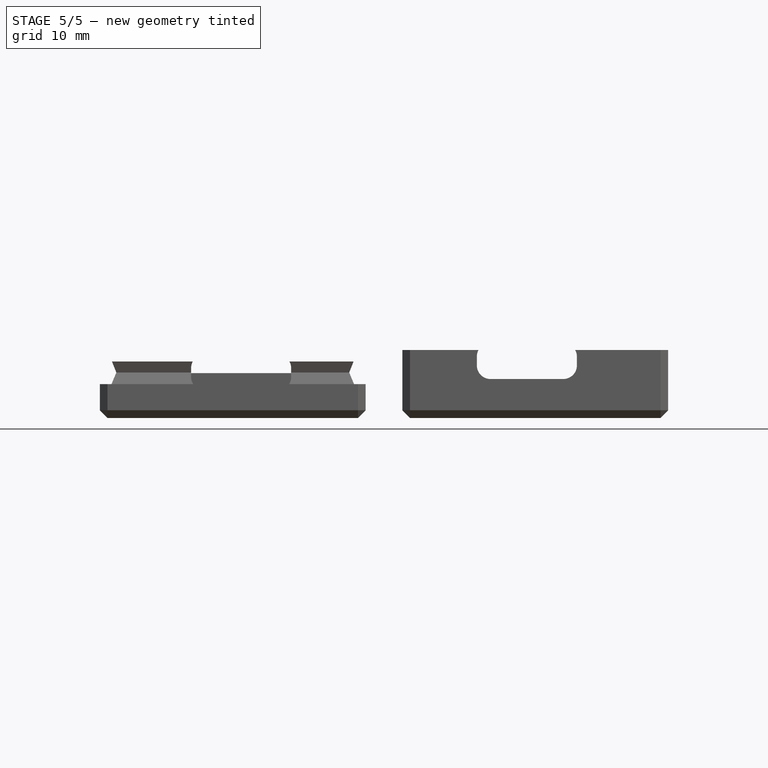
[diagram: stage 5 of 5 — front view after this stage's code; geometry added in this stage tinted green]
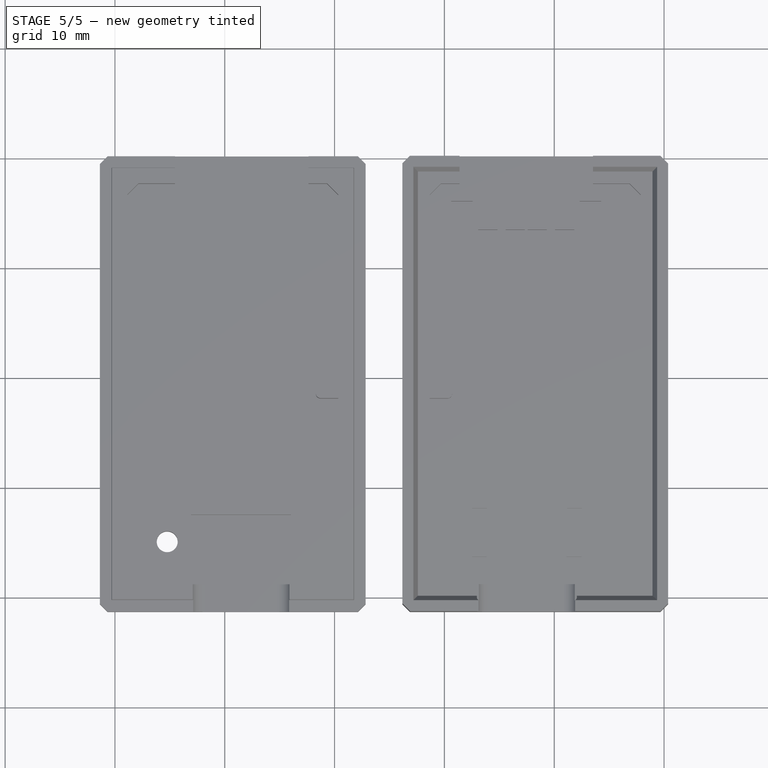
[diagram: stage 5 of 5 — top view after this stage's code; geometry added in this stage tinted green]
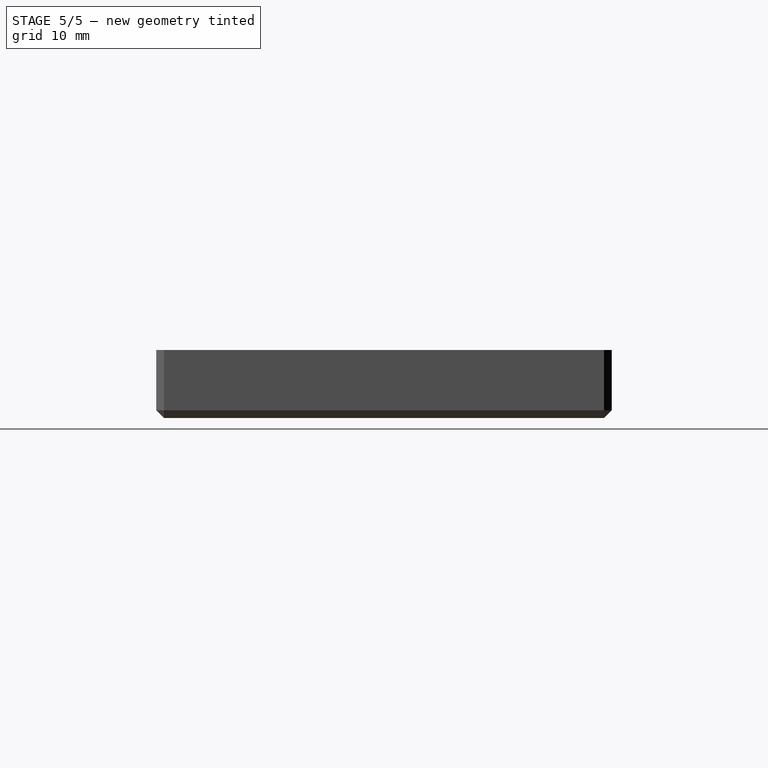
[diagram: stage 5 of 5 — right view after this stage's code; geometry added in this stage tinted green]
FEATURE [Sketcher::SketchObject] Sketch011  label="SerialPinsSketch"
  AttachmentOffset = pos=(0,0,3.636) rot=(0,0,1;0rad)
  FullyConstrained = true
  MapMode = 5
  Placement = pos=(3.636,-8e-16,8e-16) rot=(0.57735,0.57735,0.57735;2.0944rad)
  Support = -> [YZ_Plane031]
  expr: .AttachmentOffset.Base.z = 140 mil + <<Param>>.T_XY
  expr: .Constraints.D1 = 100 mil + 2 * <<Param>>.T_Z + 0.3 mm
  expr: .Constraints.H1 = 300 mil + 2 * <<Param>>.T_XY + 0.2 mm
  expr: .Constraints.Y1 = 430 mil
  expr: .Constraints.Z1 = -(0.34 mm / 2 + 0.13 mm)
  expr: Constraints[12] = (.Constraints.H1 - 300 mil) / 2 + 50 mil
  sketch-geometry (5):
    g0: LineSegment StartX=9.472 StartY=1.18 StartZ=0 EndX=17.452 EndY=1.18 EndZ=0
    g1: LineSegment StartX=17.452 StartY=1.18 StartZ=0 EndX=17.452 EndY=-1.78 EndZ=0
    g2: LineSegment StartX=17.452 StartY=-1.78 StartZ=0 EndX=9.472 EndY=-1.78 EndZ=0
    g3: LineSegment StartX=9.472 StartY=-1.78 StartZ=0 EndX=9.472 EndY=1.18 EndZ=0
    g4: LineSegment StartX=9.472 StartY=-0.3 StartZ=0 EndX=10.922 EndY=-0.3 EndZ=0
  constraints (15):
    c: Coincident(g0,g1)
    c: Coincident(g1,g2)
    c: Coincident(g2,g3)
    c: Coincident(g3,g0)
    c: Horizontal(g0)
    c: Horizontal(g2)
    c: Vertical(g1)
    c: Vertical(g3)
    c: DistanceX(g2,g2) = 7.98  'H1'
    c: DistanceY(g1,g1) = 2.96  'D1'
    c: Horizontal(g4)
    c: Symmetric(g0,g2,g4)
    c: DistanceX(g4,g4) = 1.45
    c: DistanceX(g4) = 10.922  'Y1'
    c: DistanceY(g4) = -0.3  'Z1'
FEATURE [PartDesign::Pocket] Pocket009  label="SerialPinsPocket"
  BaseFeature = -> LinearPattern
  Direction = (-1,2e-16,-3e-16)
  Length = 5
  Length2 = 5
  Profile = -> Sketch011
  ReferenceAxis = -> Sketch011 [N_Axis]
  Type = 1
FEATURE [PartDesign::Body] Body001  label="Gap"
  Group = -> [Sketch012,AdditivePipe]
  Origin = -> Origin062
  Tip = -> AdditivePipe
FEATURE [App::Link] Link  label="CaseAllPinsClone"
  LinkedObject = -> Body
FEATURE [App::Link] Link001  label="GapAllPinsClone"
  LinkedObject = -> Body001
FEATURE [App::Link] Link002  label="LabelsAllPinsClone"
  LinkedObject = -> Compound
FEATURE [Part::Cut] Cut  label="AllPinsCut"
  Base = -> Link
  Tool = -> Link002
FEATURE [Part::FeaturePython] Slice  # WARN: FeaturePython — macro-defined, semantics opaque (R4)
  Base = -> Cut
  Mode = 1
  Tolerance = 0
  Tools = -> [Link001]
FEATURE [Part::FeaturePython] Slice_child0  label="PO_AllPinsBottom"  # WARN: FeaturePython — macro-defined, semantics opaque (R4)
  Base = -> Slice
  FilterType = 1
  Invert = false
  OverrideMaxVal = 0
  Placement = pos=(9,0,2.56) rot=(0,0,1;0rad)
  WindowFrom = 80
  WindowTo = 100
  items = 0
  expr: .Placement.Base.z = -<<OuterSketch>>.Placement.Base.z
FEATURE [Part::FeaturePython] Slice_child3  label="PO_AllPinsTop"  # WARN: FeaturePython — macro-defined, semantics opaque (R4)
  Base = -> Slice
  FilterType = 1
  Invert = false
  OverrideMaxVal = 0
  Placement = pos=(0,0,6.77) rot=(0,1,0;3.14159rad)
  WindowFrom = 80
  WindowTo = 100
  items = 3
  expr: .Placement.Base.z = <<OuterSketch>>.Placement.Base.z + <<OuterPad>>.Length
FEATURE [Part::FeaturePython] Slice001_child0  label="PO_DebugPinsBottom"  # WARN: FeaturePython — macro-defined, semantics opaque (R4)
  Base = -> Slice001
  FilterType = 1
  Invert = false
  OverrideMaxVal = 0
  Placement = pos=(9,0,2.56) rot=(0,0,1;0rad)
  WindowFrom = 80
  WindowTo = 100
  items = 0
  expr: .Placement.Base.z = -<<OuterSketch>>.Placement.Base.z
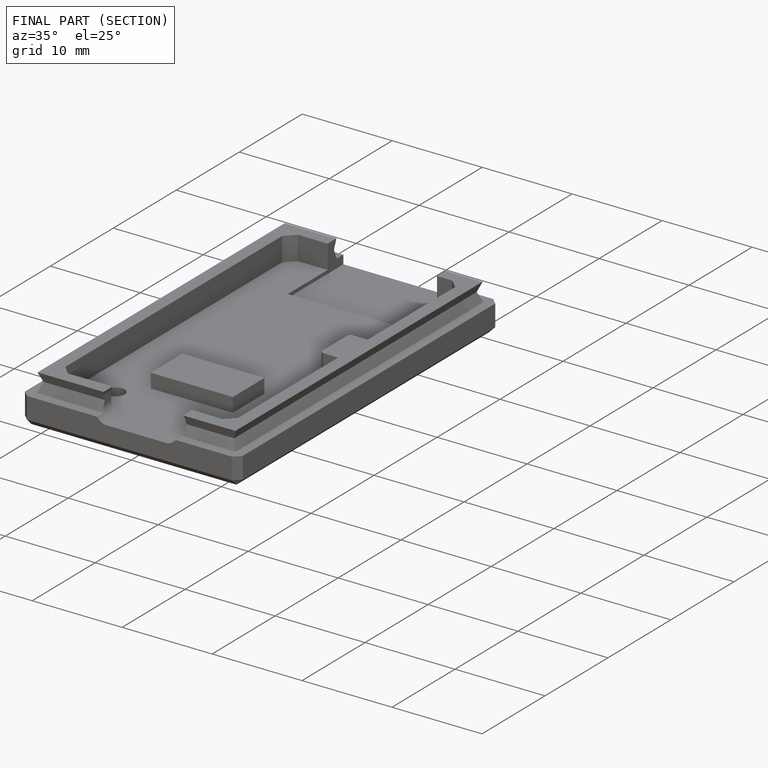
[diagram: finished part — half-section view (interior)]
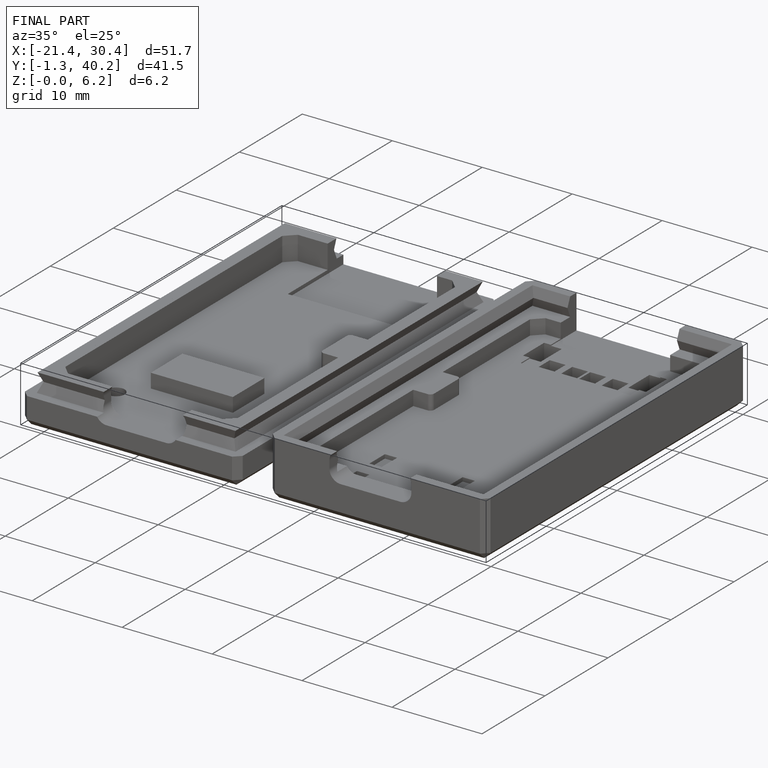
[diagram: finished part — iso view with bounding-box wireframe]
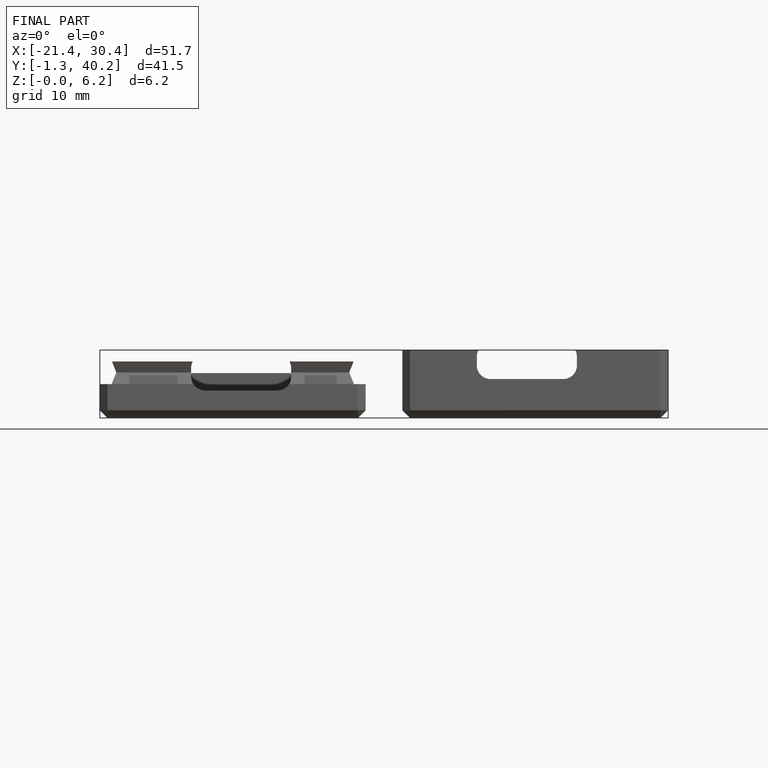
[diagram: finished part — front view with bounding-box wireframe]
